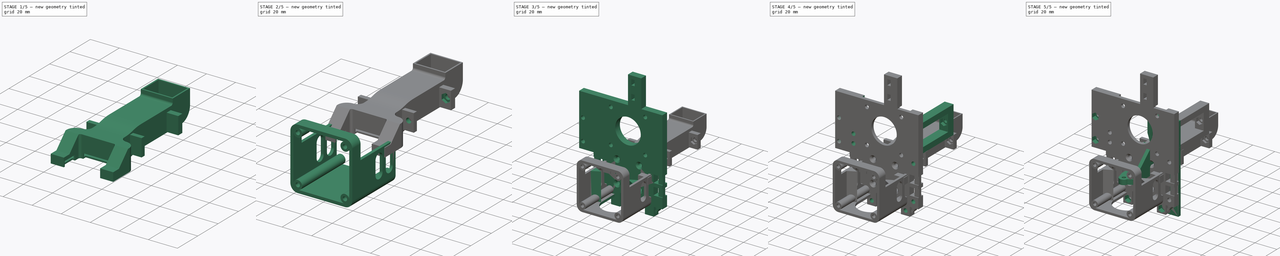
[diagram: build sequence overview — one tinted view per stage of 5, left to right]
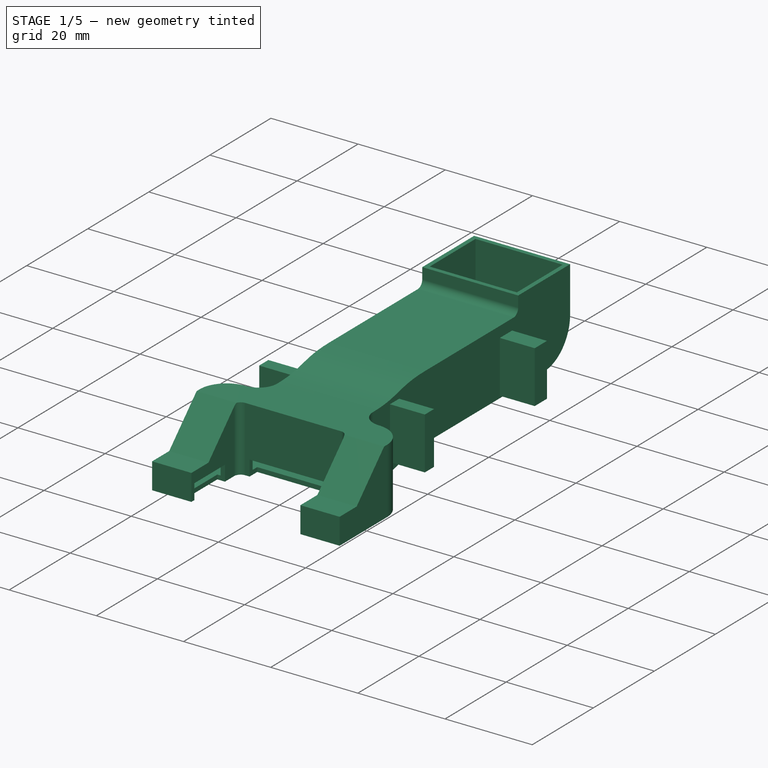
[diagram: stage 1 of 5 — iso view after this stage's code; geometry added in this stage tinted green]
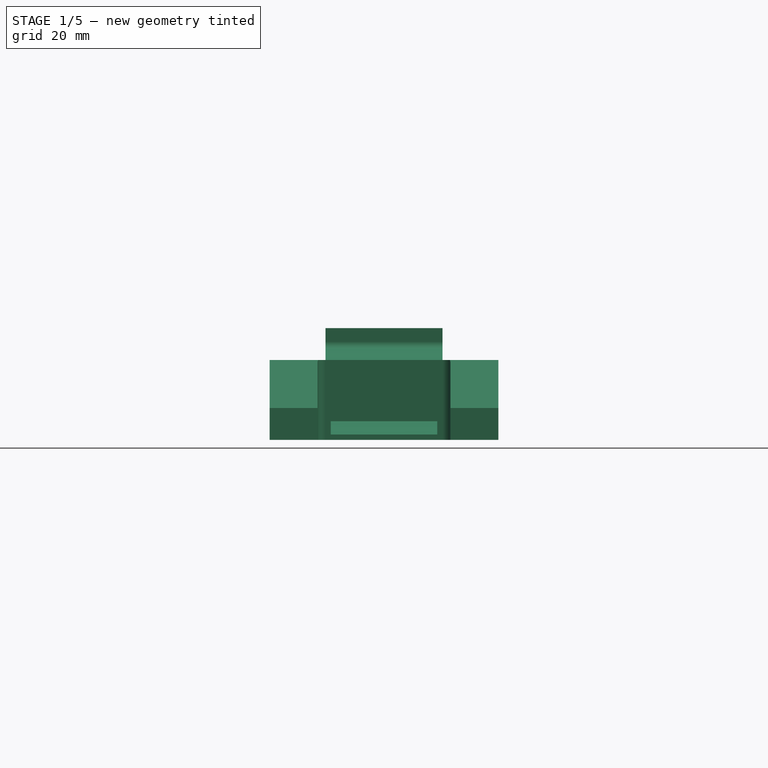
[diagram: stage 1 of 5 — front view after this stage's code; geometry added in this stage tinted green]
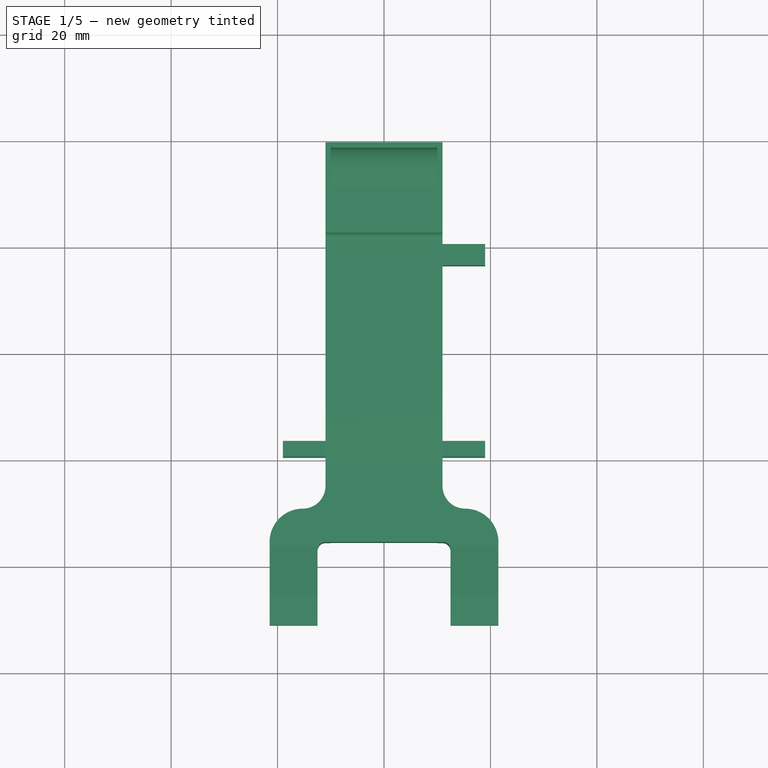
[diagram: stage 1 of 5 — top view after this stage's code; geometry added in this stage tinted green]
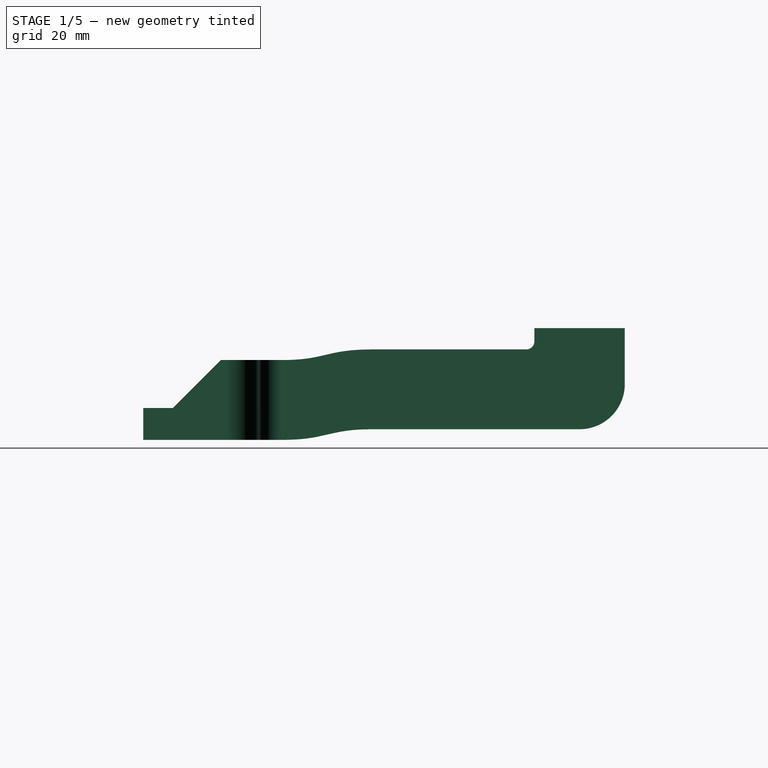
[diagram: stage 1 of 5 — right view after this stage's code; geometry added in this stage tinted green]
FCSTD DOCUMENT  (FreeCAD 0.20R28751 (Git))
Label: extruder
License: All rights reserved
LicenseURL: http://en.wikipedia.org/wiki/All_rights_reserved
objects: Sketcher::SketchObject×34, PartDesign::Pocket×19, PartDesign::Pad×15, Part::Feature×12, PartDesign::Plane×11, PartDesign::Body×5, PartDesign::ShapeBinder×3, App::Part×3, PartDesign::SubShapeBinder×1, PartDesign::Thickness×1, PartDesign::Chamfer×1, PartDesign::Mirrored×1
note: 139 computed .brp shape members not serialized (recipe doc carries the construction recipe); baked Part::Feature solids carry a one-line shape summary decoded from their .brp

FEATURE [Sketcher::SketchObject] Sketch019
  ExternalGeometry = -> [ShapeBinder001]
  FullyConstrained = true
  MapMode = 5
  Placement = pos=(0,0,0) rot=(1,0,0;1.5708rad)
  Support = -> [XZ_Plane002]
  sketch-geometry (6):
    g0: LineSegment StartX=22.5 StartY=48 StartZ=0 EndX=30.5 EndY=48 EndZ=0
    g1: LineSegment StartX=30.5 StartY=48 StartZ=0 EndX=30.5 EndY=23 EndZ=0
    g2: LineSegment StartX=30.5 StartY=23 StartZ=0 EndX=22.5 EndY=23 EndZ=0
    g3: LineSegment StartX=22.5 StartY=23 StartZ=0 EndX=22.5 EndY=48 EndZ=0
    g4: LineSegment StartX=-2e-15 StartY=35.5 StartZ=0 EndX=22.5 EndY=48 EndZ=0
    g5: LineSegment StartX=-2e-15 StartY=35.5 StartZ=0 EndX=22.5 EndY=23 EndZ=0
  constraints (16):
    c: Coincident(g0,g1)
    c: Coincident(g1,g2)
    c: Coincident(g2,g3)
    c: Coincident(g3,g0)
    c: Horizontal(g0)
    c: Horizontal(g2)
    c: Vertical(g1)
    c: Vertical(g3)
    c: DistanceX(g0,g0) = 8
    c: Coincident(g4,g-3)
    c: Coincident(g4,g0)
    c: Coincident(g5,g4)
    c: Coincident(g5,g2)
    c: Equal(g5,g4)
    c: DistanceY(g3,g3) = 25
    c: DistanceX(g-1,g0) = 22.5
FEATURE [Sketcher::SketchObject] Sketch020
  FullyConstrained = true
  MapMode = 5
  Support = -> [XY_Plane010]
  sketch-geometry (16):
    g0: LineSegment StartX=-13.5 StartY=0 StartZ=0 EndX=-13.5 EndY=-10 EndZ=0
    g1: LineSegment StartX=13.5 StartY=0 StartZ=0 EndX=13.5 EndY=-10 EndZ=0
    g2: LineSegment StartX=-13.5 StartY=-10 StartZ=0 EndX=-20.5 EndY=-10 EndZ=0
    g3: LineSegment StartX=13.5 StartY=-10 StartZ=0 EndX=20.5 EndY=-10 EndZ=0
    g4: LineSegment StartX=-11 StartY=5.5 StartZ=0 EndX=11 EndY=5.5 EndZ=0
    g5: LineSegment StartX=20.5 StartY=-10 StartZ=0 EndX=20.5 EndY=4.5 EndZ=0
    g6: ArcOfCircle CenterX=15.25 CenterY=4.5 CenterZ=0 NormalX=0 NormalY=0 NormalZ=1 AngleXU=0 Radius=5.25 StartAngle=0 EndAngle=1.5708
    g7: ArcOfCircle CenterX=15.25 CenterY=15 CenterZ=0 NormalX=0 NormalY=0 NormalZ=1 AngleXU=0 Radius=5.25 StartAngle=3.14159 EndAngle=4.71239
    g8: LineSegment StartX=-10 StartY=15 StartZ=0 EndX=10 EndY=15 EndZ=0
    g9: LineSegment StartX=-20.5 StartY=-10 StartZ=0 EndX=-20.5 EndY=4.5 EndZ=0
    g10: ArcOfCircle CenterX=-15.25 CenterY=4.5 CenterZ=0 NormalX=0 NormalY=0 NormalZ=1 AngleXU=0 Radius=5.25 StartAngle=1.5708 EndAngle=3.14159
    g11: ArcOfCircle CenterX=-15.25 CenterY=15 CenterZ=0 NormalX=0 NormalY=0 NormalZ=1 AngleXU=0 Radius=5.25 StartAngle=4.71239 EndAngle=6.28319
    g12: LineSegment StartX=-13.5 StartY=0 StartZ=0 EndX=-13.5 EndY=3 EndZ=0
    g13: ArcOfCircle CenterX=-11 CenterY=3 CenterZ=0 NormalX=0 NormalY=0 NormalZ=1 AngleXU=0 Radius=2.5 StartAngle=1.5708 EndAngle=3.14159
    g14: LineSegment StartX=13.5 StartY=0 StartZ=0 EndX=13.5 EndY=3 EndZ=0
    g15: ArcOfCircle CenterX=11 CenterY=3 CenterZ=0 NormalX=0 NormalY=0 NormalZ=1 AngleXU=0 Radius=2.5 StartAngle=-5.51e-14 EndAngle=1.5708
  constraints (45):
    c: PointOnObject(g1,g-1)
    c: PointOnObject(g0,g-1)
    c: Vertical(g0)
    c: Vertical(g1)
    c: Equal(g0,g1)
    c: DistanceY(g0,g0) = 10
    c: Coincident(g2,g0)
    c: Horizontal(g2)
    c: Coincident(g3,g1)
    c: Horizontal(g3)
    c: Equal(g2,g3)
    c: DistanceX(g3,g3) = 7
    c: DistanceX(g4,g4) = 22
    c: Coincident(g5,g3)
    c: Vertical(g5)
    c: Coincident(g6,g5)
    c: Horizontal(g6,g5)
    c: Vertical(g6,g6)
    c: Tangent(g7,g6) = 1.5708
    c: Symmetric(g8,g8,g-2)
    c: DistanceX(g8,g8) = 20
    c: Equal(g6,g7)
    c: Coincident(g9,g2)
    c: Vertical(g9)
    c: Equal(g9,g5)
    c: Tangent(g11,g10) = 1.5708
    c: Tangent(g10,g9) = 1.5708
    c: Equal(g10,g11)
    c: Equal(g11,g6)
    c: DistanceY(g-1,g7) = 15
    c: Coincident(g11,g8)
    c: Coincident(g8,g7)
    c: Perpendicular(g7,g8)
    c: Coincident(g12,g0)
    c: Vertical(g12)
    c: DistanceY(g12,g12) = 3
    c: Tangent(g13,g12) = 1.5708
    c: Tangent(g13,g4) = 1.5708
    c: Diameter(g13) = 5
    c: Coincident(g14,g1)
    c: Vertical(g14)
    c: Equal(g12,g14)
    c: Tangent(g15,g14) = -1.5708
    c: Tangent(g15,g4) = 1.5708
    c: Symmetric(g4,g4,g-2)
FEATURE [PartDesign::Pad] Pad008
  Direction = (0,0,1)
  Length = 13
  Length2 = 10
  Profile = -> Sketch020
  ReferenceAxis = -> Sketch020 [N_Axis]
  Refine = true
  Type = 0
FEATURE [Sketcher::SketchObject] Sketch021
  FullyConstrained = true
  MapMode = 5
  Placement = pos=(0,0,0) rot=(0.57735,0.57735,0.57735;2.0944rad)
  Support = -> [YZ_Plane010]
  sketch-geometry (4):
    g0: LineSegment StartX=-10 StartY=4 StartZ=0 EndX=-5 EndY=4 EndZ=0
    g1: LineSegment StartX=-10 StartY=19 StartZ=0 EndX=10 EndY=19 EndZ=0
    g2: LineSegment StartX=-10 StartY=4 StartZ=0 EndX=-10 EndY=19 EndZ=0
    g3: LineSegment StartX=-5 StartY=4 StartZ=0 EndX=10 EndY=19 EndZ=0
  constraints (12):
    c: Horizontal(g0)
    c: DistanceY(g-1,g0) = 4
    c: Horizontal(g1)
    c: DistanceX(g0,g0) = 5
    c: Coincident(g2,g0)
    c: Coincident(g2,g1)
    c: Vertical(g2)
    c: Coincident(g3,g0)
    c: Coincident(g3,g1)
    c: Angle(g3,g0) = 2.35619
    c: DistanceY(g2,g2) = 15
    c: DistanceX(g0,g-1) = 5
FEATURE [PartDesign::Pocket] Pocket012
  BaseFeature = -> Pad008
  Direction = (-1,2e-16,-3e-16)
  Length = 5
  Length2 = 5
  Midplane = true
  Profile = -> Sketch021
  ReferenceAxis = -> Sketch021 [N_Axis]
  Refine = true
  Type = 1
FEATURE [Sketcher::SketchObject] Sketch037
  FullyConstrained = true
  MapMode = 5
  Support = -> [XY_Plane010]
  sketch-geometry (4):
    g0: LineSegment StartX=-10 StartY=15 StartZ=0 EndX=10 EndY=15 EndZ=0
    g1: LineSegment StartX=10 StartY=15 StartZ=0 EndX=10 EndY=78.5 EndZ=0
    g2: LineSegment StartX=10 StartY=78.5 StartZ=0 EndX=-10 EndY=78.5 EndZ=0
    g3: LineSegment StartX=-10 StartY=78.5 StartZ=0 EndX=-10 EndY=15 EndZ=0
  constraints (11):
    c: Coincident(g0,g1)
    c: Coincident(g1,g2)
    c: Coincident(g2,g3)
    c: Coincident(g3,g0)
    c: Horizontal(g2)
    c: Vertical(g1)
    c: Vertical(g3)
    c: DistanceY(g1,g1) = 63.5
    c: DistanceY(g-1,g0) = 15
    c: DistanceX(g0,g0) = 20
    c: Symmetric(g0,g0,g-2)
FEATURE [PartDesign::Pad] Pad012
  BaseFeature = -> Pocket012
  Direction = (0,0,1)
  Length = 20
  Length2 = 10
  Profile = -> Sketch037
  ReferenceAxis = -> Sketch037 [N_Axis]
  Refine = true
  Type = 0
FEATURE [Sketcher::SketchObject] Sketch038
  FullyConstrained = true
  MapMode = 5
  Placement = pos=(0,0,0) rot=(0.57735,0.57735,0.57735;2.0944rad)
  Support = -> [YZ_Plane010]
  sketch-geometry (29):
    g0: LineSegment StartX=15 StartY=0 StartZ=0 EndX=15 EndY=13 EndZ=0
    g1: LineSegment StartX=32 StartY=15 StartZ=0 EndX=32 EndY=2 EndZ=0
    g2-g5: Circle x4 (B-spline internal-alignment scaffolding for g6; pole/knot coordinates omitted)
    g6: BSplineCurve PolesCount=4 KnotsCount=2 Degree=3 IsPeriodic=0
    g7: GeomPoint X=15 Y=13 Z=0
    g8: GeomPoint X=32 Y=15 Z=0
    g9-g12: Circle x4 (B-spline internal-alignment scaffolding for g13; pole/knot coordinates omitted)
    g13: BSplineCurve PolesCount=4 KnotsCount=2 Degree=3 IsPeriodic=0
    g14: GeomPoint X=15 Y=0 Z=0
    g15: GeomPoint X=32 Y=2 Z=0
    g16: LineSegment StartX=23.5 StartY=15 StartZ=0 EndX=32 EndY=15 EndZ=0
    g17: LineSegment StartX=23.5 StartY=15 StartZ=0 EndX=15 EndY=15 EndZ=0
    g18: LineSegment StartX=15 StartY=13 StartZ=0 EndX=15 EndY=33 EndZ=0
    g19: LineSegment StartX=15 StartY=33 StartZ=0 EndX=63.5 EndY=33 EndZ=0
    g20: LineSegment StartX=32 StartY=15 StartZ=0 EndX=61 EndY=15 EndZ=0
    g21: LineSegment StartX=63.5 StartY=17.5 StartZ=0 EndX=63.5 EndY=33 EndZ=0
    g22: LineSegment StartX=98.5 StartY=0 StartZ=0 EndX=98.5 EndY=33 EndZ=0
    g23: ArcOfCircle CenterX=71 CenterY=9.5 CenterZ=0 NormalX=0 NormalY=0 NormalZ=1 AngleXU=0 Radius=7.5 StartAngle=4.71239 EndAngle=6.28319
    g24: LineSegment StartX=32 StartY=2 StartZ=0 EndX=71 EndY=2 EndZ=0
    g25: LineSegment StartX=78.5 StartY=9.5 StartZ=0 EndX=78.5 EndY=33 EndZ=0
    g26: LineSegment StartX=78.5 StartY=33 StartZ=0 EndX=98.5 EndY=33 EndZ=0
    g27: ArcOfCircle CenterX=61 CenterY=17.5 CenterZ=0 NormalX=0 NormalY=0 NormalZ=1 AngleXU=0 Radius=2.5 StartAngle=4.71239 EndAngle=6.28319
    g28: LineSegment StartX=15 StartY=0 StartZ=0 EndX=98.5 EndY=0 EndZ=0
  constraints (68):
    c: Vertical(g0)
    c: DistanceX(g0) = 15
    c: DistanceY(g0,g0) = 13
    c: PointOnObject(g0,g-1)
    c: Vertical(g1)
    c: Equal(g0,g1)
    c: Coincident(g6,g0)
    c: Weight(g2) = 1
    c: Equal(g2,g3)
    c: Equal(g2,g4)
    c: Equal(g2,g5)
    c: Coincident(g6,g1)
    c: InternalAlignment(g2-g5 -> g6) x4
    c: InternalAlignment(g7,g6)
    c: InternalAlignment(g8,g6)
    c: Horizontal(g3,g6)
    c: Horizontal(g4,g6)
    c: Vertical(g3,g4)
    c: Weight(g9) = 1
    c: Equal(g9,g10)
    c: PointOnObject(g10,g-1)
    c: Equal(g9,g11)
    c: Equal(g9,g12)
    c: InternalAlignment(g9-g12 -> g13) x4
    c: InternalAlignment(g14,g13)
    c: InternalAlignment(g15,g13)
    c: Horizontal(g11,g13)
    c: Vertical(g10,g11)
    c: Vertical(g11,g3)
    c: DistanceX(g13) = 32
    c: Coincident(g16,g4)
    c: Coincident(g16,g6)
    c: Coincident(g13,g1)
    c: Coincident(g17,g4)
    c: Horizontal(g17)
    c: Equal(g17,g16)
    c: Vertical(g6,g17)
    c: Coincident(g13,g0)
    c: Coincident(g18,g6)
    c: Vertical(g18)
    c: DistanceY(g18,g18) = 20
    c: Coincident(g19,g18)
    c: Horizontal(g19)
    c: Coincident(g20,g6)
    c: Horizontal(g20)
    c: Vertical(g21)
    c: PointOnObject(g22,g-1)
    c: DistanceY(g13) = 2
    c: Vertical(g22)
    c: Coincident(g24,g13)
    c: Horizontal(g24)
    c: Tangent(g24,g23) = -1.5708
    c: Vertical(g25)
    c: Coincident(g26,g25)
    c: Horizontal(g26)
    c: Coincident(g22,g26)
    c: Tangent(g23,g25) = -1.5708
    c: Horizontal(g19,g25)
    c: DistanceX(g25) = 78.5
    c: Coincident(g19,g21)
    c: DistanceX(g19,g25) = 15
    c: Tangent(g27,g21) = -1.5708
    c: Coincident(g28,g13)
    c: Coincident(g28,g22)
    c: DistanceX(g26,g26) = 20
    c: Diameter(g23) = 15
    c: Diameter(g27) = 5
    c: Tangent(g20,g27) = -1.5708
FEATURE [PartDesign::Pocket] Pocket020
  BaseFeature = -> Pad012
  Direction = (-1,2e-16,-3e-16)
  Length = 5
  Length2 = 5
  Midplane = true
  Profile = -> Sketch038
  ReferenceAxis = -> Sketch038 [N_Axis]
  Refine = true
  Type = 1
FEATURE [PartDesign::Thickness] Thickness
  Base = -> Pocket020 [Face27]
  BaseFeature = -> Pocket020
  Intersection = false
  Join = 1
  Mode = 0
  Refine = true
  SupportTransform = false
  Value = 1
FEATURE [PartDesign::Body] Body  label="V6 fan duct"
  Group = -> [Sketch006,Pad003,DatumPlane001,Sketch008,Pocket004,DatumPlane002,Sketch009,Pocket005,Sketch010,Pocket006,Sketch012,Pocket008,Sketch013,Pad004,Sketch015,Pocket,Sketch040,Pad015]
  Origin = -> Origin007
  Placement = pos=(4,-6,7) rot=(0,0,1;0rad)
  Tip = -> Pad015
FEATURE [PartDesign::Plane] DatumPlane012
  AttachmentOffset = pos=(0,0,2.5) rot=(0,0,1;0rad)
  Length = 64.4568
  MapMode = 5
  Placement = pos=(0,0,2.5) rot=(0,0,1;0rad)
  ResizeMode = 0
  Support = -> [XY_Plane010]
  Width = 118.957
FEATURE [Sketcher::SketchObject] Sketch028
  FullyConstrained = true
  MapMode = 5
  Placement = pos=(0,0,2.5) rot=(0,0,1;0rad)
  Support = -> [DatumPlane012]
  sketch-geometry (8):
    g0: LineSegment StartX=-10 StartY=7 StartZ=0 EndX=10 EndY=7 EndZ=0
    g1: LineSegment StartX=10 StartY=7 StartZ=0 EndX=10 EndY=0 EndZ=0
    g2: LineSegment StartX=10 StartY=0 StartZ=0 EndX=-10 EndY=0 EndZ=0
    g3: LineSegment StartX=-10 StartY=0 StartZ=0 EndX=-10 EndY=7 EndZ=0
    g4: LineSegment StartX=-14.25 StartY=0 StartZ=0 EndX=14.25 EndY=0 EndZ=0
    g5: LineSegment StartX=14.25 StartY=0 StartZ=0 EndX=14.25 EndY=-10 EndZ=0
    g6: LineSegment StartX=14.25 StartY=-10 StartZ=0 EndX=-14.25 EndY=-10 EndZ=0
    g7: LineSegment StartX=-14.25 StartY=-10 StartZ=0 EndX=-14.25 EndY=0 EndZ=0
  constraints (22):
    c: Coincident(g0,g1)
    c: Coincident(g1,g2)
    c: Coincident(g2,g3)
    c: Coincident(g3,g0)
    c: Horizontal(g2)
    c: Vertical(g1)
    c: Vertical(g3)
    c: PointOnObject(g1,g-1)
    c: Symmetric(g0,g0,g-2)
    c: DistanceX(g0,g0) = 20
    c: DistanceY(g1,g1) = 7
    c: Coincident(g4,g5)
    c: Coincident(g5,g6)
    c: Coincident(g6,g7)
    c: Coincident(g7,g4)
    c: Horizontal(g4)
    c: Vertical(g5)
    c: Vertical(g7)
    c: Symmetric(g6,g5,g-2)
    c: DistanceY(g5,g5) = 10
    c: DistanceX(g6,g6) = 28.5
    c: PointOnObject(g4,g-1)
FEATURE [PartDesign::Pocket] Pocket021
  BaseFeature = -> Thickness
  Direction = (0,0,-1)
  Length = 5
  Length2 = 5
  Profile = -> Sketch028
  ReferenceAxis = -> Sketch028 [N_Axis]
  Refine = true
  Type = 0
FEATURE [PartDesign::Pad] Pad013
  BaseFeature = -> Pocket021
  Direction = (0,0,1)
  Length = 12
  Length2 = 10
  Profile = -> Sketch029
  ReferenceAxis = -> Sketch029 [N_Axis]
  Refine = true
  Type = 0
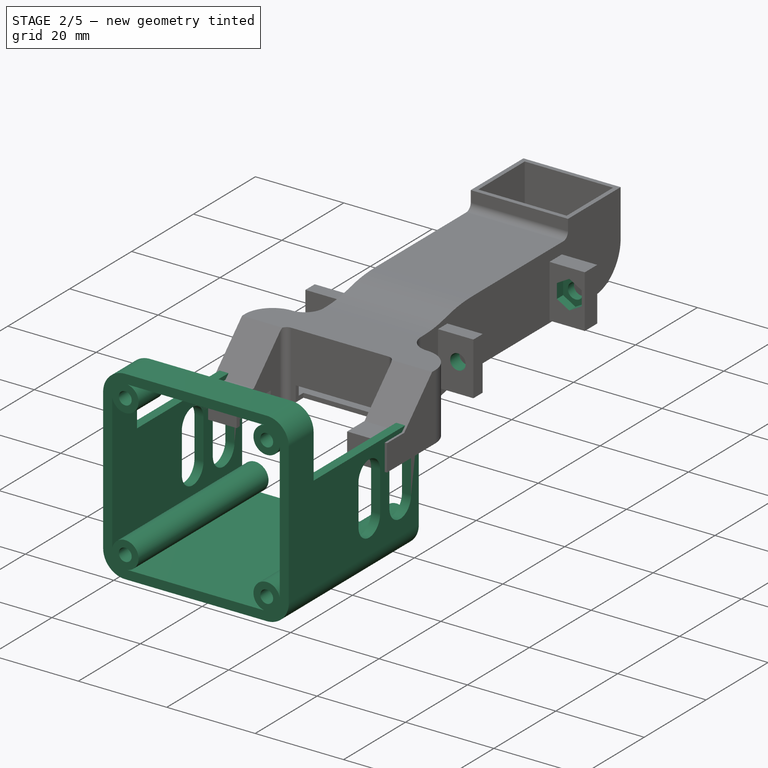
[diagram: stage 2 of 5 — iso view after this stage's code; geometry added in this stage tinted green]
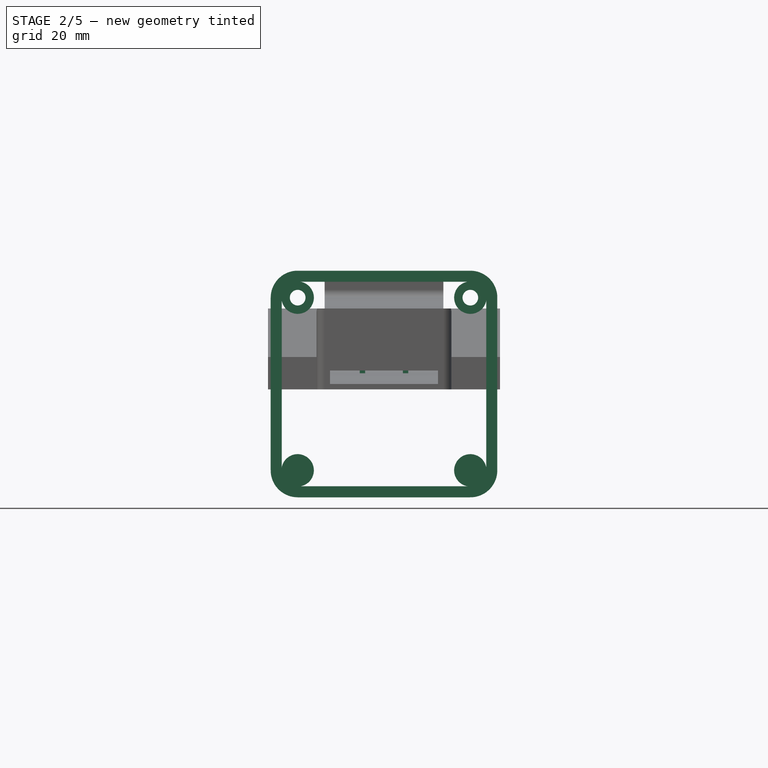
[diagram: stage 2 of 5 — front view after this stage's code; geometry added in this stage tinted green]
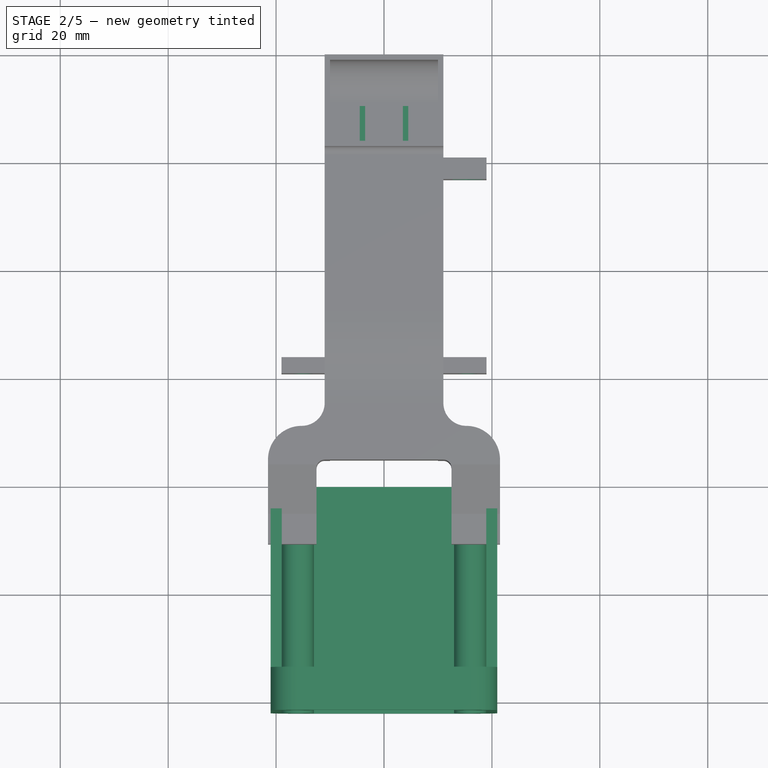
[diagram: stage 2 of 5 — top view after this stage's code; geometry added in this stage tinted green]
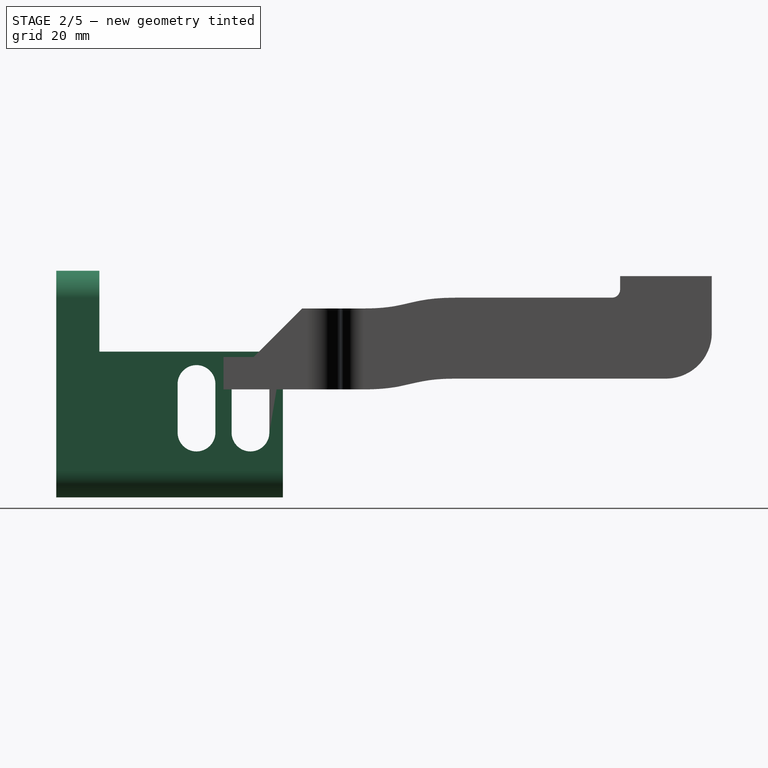
[diagram: stage 2 of 5 — right view after this stage's code; geometry added in this stage tinted green]
FEATURE [Sketcher::SketchObject] Sketch004
  ExternalGeometry = -> [ShapeBinder002]
  FullyConstrained = true
  MapMode = 5
  Placement = pos=(0,0,0) rot=(1,0,0;1.5708rad)
  Support = -> [XZ_Plane002]
  sketch-geometry (4):
    g0: Circle CenterX=-40.5725 CenterY=16.3875 CenterZ=0 NormalX=0 NormalY=0 NormalZ=1 AngleXU=0 Radius=3
    g1: Circle CenterX=-40.5725 CenterY=35.5625 CenterZ=0 NormalX=0 NormalY=0 NormalZ=1 AngleXU=0 Radius=3
    g2: Circle CenterX=-40.5725 CenterY=35.5625 CenterZ=0 NormalX=0 NormalY=0 NormalZ=1 AngleXU=0 Radius=1.75
    g3: Circle CenterX=-40.5725 CenterY=16.3875 CenterZ=0 NormalX=0 NormalY=0 NormalZ=1 AngleXU=0 Radius=1.75
  constraints (8):
    c: Coincident(g0,g-4)
    c: Diameter(g0) = 6
    c: Coincident(g-3,g1)
    c: Equal(g1,g0)
    c: Coincident(g2,g1)
    c: Diameter(g2) = 3.5
    c: Coincident(g3,g0)
    c: Equal(g3,g2)
FEATURE [Sketcher::SketchObject] Sketch005
  ExternalGeometry = -> [ShapeBinder001]
  FullyConstrained = true
  MapMode = 5
  Placement = pos=(0,0,0) rot=(1,0,0;1.5708rad)
  Support = -> [XZ_Plane002]
  sketch-geometry (8):
    g0: LineSegment StartX=-21.65 StartY=57.15 StartZ=0 EndX=21.65 EndY=57.15 EndZ=0
    g1: LineSegment StartX=21.65 StartY=57.15 StartZ=0 EndX=21.65 EndY=13.85 EndZ=0
    g2: LineSegment StartX=21.65 StartY=13.85 StartZ=0 EndX=-21.65 EndY=13.85 EndZ=0
    g3: LineSegment StartX=-21.65 StartY=13.85 StartZ=0 EndX=-21.65 EndY=57.15 EndZ=0
    g4: LineSegment StartX=-20.65 StartY=52.9074 StartZ=0 EndX=-21.65 EndY=52.9074 EndZ=0
    g5: LineSegment StartX=20.65 StartY=52.9074 StartZ=0 EndX=21.65 EndY=52.9074 EndZ=0
    g6: LineSegment StartX=-17.4074 StartY=14.85 StartZ=0 EndX=-17.4074 EndY=13.85 EndZ=0
    g7: LineSegment StartX=17.4074 StartY=56.15 StartZ=0 EndX=17.4074 EndY=57.15 EndZ=0
  constraints (24):
    c: Coincident(g0,g1)
    c: Coincident(g1,g2)
    c: Coincident(g2,g3)
    c: Coincident(g3,g0)
    c: Horizontal(g0)
    c: Horizontal(g2)
    c: Vertical(g1)
    c: Vertical(g3)
    c: Coincident(g4,g-5)
    c: PointOnObject(g4,g3)
    c: Horizontal(g4)
    c: DistanceX(g4,g4) = 1
    c: Coincident(g5,g-4)
    c: PointOnObject(g5,g1)
    c: Horizontal(g5)
    c: Equal(g5,g4)
    c: Coincident(g6,g-3)
    c: PointOnObject(g6,g2)
    c: Vertical(g6)
    c: Equal(g6,g4)
    c: Coincident(g7,g-6)
    c: PointOnObject(g7,g0)
    c: Vertical(g7)
    c: Equal(g4,g7)
FEATURE [Sketcher::SketchObject] Sketch006
  FullyConstrained = true
  MapMode = 5
  Placement = pos=(0,0,0) rot=(1,0,0;1.5708rad)
  Support = -> [XZ_Plane007]
  sketch-geometry (12):
    g0: LineSegment StartX=-16 StartY=21 StartZ=0 EndX=16 EndY=21 EndZ=0
    g1: LineSegment StartX=21 StartY=16 StartZ=0 EndX=21 EndY=-16 EndZ=0
    g2: LineSegment StartX=16 StartY=-21 StartZ=0 EndX=-16 EndY=-21 EndZ=0
    g3: LineSegment StartX=-21 StartY=-16 StartZ=0 EndX=-21 EndY=16 EndZ=0
    g4: ArcOfCircle CenterX=-16 CenterY=16 CenterZ=0 NormalX=0 NormalY=0 NormalZ=1 AngleXU=0 Radius=5 StartAngle=1.5708 EndAngle=3.14159
    g5: GeomPoint X=-21 Y=21 Z=0
    g6: ArcOfCircle CenterX=-16 CenterY=-16 CenterZ=0 NormalX=0 NormalY=0 NormalZ=1 AngleXU=0 Radius=5 StartAngle=3.14159 EndAngle=4.71239
    g7: GeomPoint X=-21 Y=-21 Z=0
    g8: ArcOfCircle CenterX=16 CenterY=16 CenterZ=0 NormalX=0 NormalY=0 NormalZ=1 AngleXU=0 Radius=5 StartAngle=0 EndAngle=1.5708
    g9: GeomPoint X=21 Y=21 Z=0
    g10: ArcOfCircle CenterX=16 CenterY=-16 CenterZ=0 NormalX=0 NormalY=0 NormalZ=1 AngleXU=0 Radius=5 StartAngle=4.71239 EndAngle=6.28319
    g11: GeomPoint X=21 Y=-21 Z=0
  constraints (26):
    c: Horizontal(g2)
    c: Vertical(g1)
    c: DistanceY(g7,g5) = 42
    c: DistanceX(g7,g11) = 42
    c: Symmetric(g5,g9,g-2)
    c: Symmetric(g7,g5,g-1)
    c: PointOnObject(g5,g3)
    c: PointOnObject(g5,g0)
    c: Tangent(g3,g4) = 1.5708
    c: Tangent(g0,g4) = 1.5708
    c: Diameter(g4) = 10
    c: PointOnObject(g7,g2)
    c: PointOnObject(g7,g3)
    c: Tangent(g2,g6) = 1.5708
    c: Tangent(g3,g6) = 1.5708
    c: Equal(g6,g4)
    c: PointOnObject(g9,g0)
    c: PointOnObject(g9,g1)
    c: Tangent(g0,g8) = 1.5708
    c: Tangent(g1,g8) = 1.5708
    c: Equal(g8,g4)
    c: PointOnObject(g11,g2)
    c: PointOnObject(g11,g1)
    c: Tangent(g2,g10) = 1.5708
    c: Tangent(g1,g10) = 1.5708
    c: Equal(g10,g8)
FEATURE [PartDesign::Pad] Pad003
  Direction = (0,-1,-2e-16)
  Length = 42
  Length2 = 10
  Placement = pos=(0,0,0) rot=(1,0,0;1.5708rad)
  Profile = -> Sketch006
  ReferenceAxis = -> Sketch006 [N_Axis]
  Refine = true
  Type = 0
FEATURE [PartDesign::Plane] DatumPlane001
  AttachmentOffset = pos=(0,0,6) rot=(0,0,1;0rad)
  Length = 63.7785
  MapMode = 2
  Placement = pos=(0,0,6) rot=(0,0,1;0rad)
  ResizeMode = 0
  Support = -> [XY_Plane007]
  Width = 78.8024
FEATURE [Sketcher::SketchObject] Sketch008
  FullyConstrained = true
  MapMode = 5
  Placement = pos=(0,0,6) rot=(0,0,1;0rad)
  Support = -> [DatumPlane001]
  sketch-geometry (4):
    g0: LineSegment StartX=-30 StartY=0 StartZ=0 EndX=30 EndY=0 EndZ=0
    g1: LineSegment StartX=30 StartY=0 StartZ=0 EndX=30 EndY=-34 EndZ=0
    g2: LineSegment StartX=30 StartY=-34 StartZ=0 EndX=-30 EndY=-34 EndZ=0
    g3: LineSegment StartX=-30 StartY=-34 StartZ=0 EndX=-30 EndY=0 EndZ=0
  constraints (11):
    c: Coincident(g0,g1)
    c: Coincident(g1,g2)
    c: Coincident(g2,g3)
    c: Coincident(g3,g0)
    c: Horizontal(g0)
    c: Vertical(g1)
    c: Vertical(g3)
    c: Symmetric(g2,g1,g-2)
    c: PointOnObject(g0,g-1)
    c: DistanceX(g2,g2) = 60
    c: DistanceY(g1,g1) = 34
FEATURE [PartDesign::Pocket] Pocket004
  BaseFeature = -> Pad003
  Direction = (0,0,-1)
  Length = 5
  Length2 = 5
  Placement = pos=(0,0,0) rot=(1,0,0;1.5708rad)
  Profile = -> Sketch008
  ReferenceAxis = -> Sketch008 [N_Axis]
  Refine = true
  Reversed = true
  Type = 1
FEATURE [PartDesign::Plane] DatumPlane002
  AttachmentOffset = pos=(0,0,42) rot=(0,0,1;0rad)
  Length = 62.2214
  MapMode = 5
  Placement = pos=(0,-42,-9.3e-15) rot=(1,0,0;1.5708rad)
  ResizeMode = 0
  Support = -> [XZ_Plane007]
  Width = 60.7334
FEATURE [Sketcher::SketchObject] Sketch009
  FullyConstrained = true
  MapMode = 5
  Placement = pos=(0,-42,-9.3e-15) rot=(1,0,0;1.5708rad)
  Support = -> [DatumPlane002]
  sketch-geometry (6):
    g0: Circle CenterX=-16 CenterY=16 CenterZ=0 NormalX=0 NormalY=0 NormalZ=1 AngleXU=0 Radius=1.45
    g1: Circle CenterX=16 CenterY=16 CenterZ=0 NormalX=0 NormalY=0 NormalZ=1 AngleXU=0 Radius=1.45
    g2: Circle CenterX=-16 CenterY=-16 CenterZ=0 NormalX=0 NormalY=0 NormalZ=1 AngleXU=0 Radius=1.45
    g3: Circle CenterX=16 CenterY=-16 CenterZ=0 NormalX=0 NormalY=0 NormalZ=1 AngleXU=0 Radius=1.45
    g4: LineSegment StartX=-16 StartY=16 StartZ=0 EndX=16 EndY=16 EndZ=0
    g5: LineSegment StartX=-16 StartY=-16 StartZ=0 EndX=-16 EndY=16 EndZ=0
  constraints (14):
    c: Diameter(g0) = 2.9
    c: Equal(g0,g1)
    c: Symmetric(g0,g1,g-2)
    c: DistanceX(g0,g1) = 32
    c: Equal(g2,g0)
    c: Equal(g3,g0)
    c: Symmetric(g2,g0,g-1)
    c: Coincident(g4,g0)
    c: Coincident(g4,g1)
    c: Coincident(g5,g2)
    c: Coincident(g5,g0)
    c: Equal(g5,g4)
    c: Horizontal(g3,g2)
    c: Vertical(g3,g1)
FEATURE [PartDesign::Pocket] Pocket005
  BaseFeature = -> Pocket004
  Direction = (0,1,2e-16)
  Length = 8
  Length2 = 5
  Placement = pos=(0,0,0) rot=(1,0,0;1.5708rad)
  Profile = -> Sketch009
  ReferenceAxis = -> Sketch009 [N_Axis]
  Refine = true
  Type = 0
FEATURE [Sketcher::SketchObject] Sketch010
  FullyConstrained = true
  MapMode = 5
  Placement = pos=(0,-42,-9.3e-15) rot=(1,0,0;1.5708rad)
  Support = -> [DatumPlane002]
  sketch-geometry (12):
    g0: LineSegment StartX=-18.958 StartY=15.5 StartZ=0 EndX=-18.958 EndY=-15.5 EndZ=0
    g1: LineSegment StartX=-16 StartY=16 StartZ=0 EndX=16 EndY=16 EndZ=0
    g2: LineSegment StartX=16 StartY=16 StartZ=0 EndX=16 EndY=-16 EndZ=0
    g3: LineSegment StartX=16 StartY=-16 StartZ=0 EndX=-16 EndY=-16 EndZ=0
    g4: LineSegment StartX=-16 StartY=-16 StartZ=0 EndX=-16 EndY=16 EndZ=0
    g5: ArcOfCircle CenterX=-16 CenterY=16 CenterZ=0 NormalX=0 NormalY=0 NormalZ=1 AngleXU=0 Radius=3 StartAngle=3.30904 EndAngle=7.68653
    g6: LineSegment StartX=-15.5 StartY=18.958 StartZ=0 EndX=15.5 EndY=18.958 EndZ=0
    g7: ArcOfCircle CenterX=16 CenterY=16 CenterZ=0 NormalX=0 NormalY=0 NormalZ=1 AngleXU=0 Radius=3 StartAngle=1.73824 EndAngle=6.11574
    g8: LineSegment StartX=-15.5 StartY=-18.958 StartZ=0 EndX=15.5 EndY=-18.958 EndZ=0
    g9: LineSegment StartX=18.958 StartY=-15.5 StartZ=0 EndX=18.958 EndY=15.5 EndZ=0
    g10: ArcOfCircle CenterX=-16 CenterY=-16 CenterZ=0 NormalX=0 NormalY=0 NormalZ=1 AngleXU=0 Radius=3 StartAngle=4.87984 EndAngle=9.25733
    g11: ArcOfCircle CenterX=16 CenterY=-16 CenterZ=0 NormalX=0 NormalY=0 NormalZ=1 AngleXU=0 Radius=3 StartAngle=0.167448 EndAngle=4.54494
  constraints (35):
    c: Vertical(g0)
    c: Coincident(g1,g2)
    c: Coincident(g2,g3)
    c: Coincident(g3,g4)
    c: Coincident(g4,g1)
    c: Horizontal(g1)
    c: Horizontal(g3)
    c: Vertical(g2)
    c: Vertical(g4)
    c: Symmetric(g1,g2,g-1)
    c: DistanceX(g1,g1) = 32
    c: Equal(g4,g1)
    c: Coincident(g5,g0)
    c: Coincident(g1,g5)
    c: Coincident(g6,g5)
    c: Horizontal(g6)
    c: Coincident(g7,g1)
    c: Coincident(g7,g6)
    c: Horizontal(g8)
    c: Coincident(g9,g7)
    c: Vertical(g9)
    c: Coincident(g10,g3)
    c: Coincident(g10,g0)
    c: Coincident(g10,g8)
    c: Coincident(g11,g2)
    c: Coincident(g11,g8)
    c: Coincident(g11,g9)
    c: Equal(g5,g7)
    c: Equal(g7,g10)
    c: Equal(g10,g11)
    c: Equal(g0,g8)
    c: Equal(g8,g9)
    c: Equal(g9,g6)
    c: Diameter(g7) = 6
    c: DistanceY(g9,g9) = 31
FEATURE [PartDesign::Pocket] Pocket006
  BaseFeature = -> Pocket005
  Direction = (0,1,2e-16)
  Length = 5
  Length2 = 5
  Placement = pos=(0,0,0) rot=(1,0,0;1.5708rad)
  Profile = -> Sketch010
  ReferenceAxis = -> Sketch010 [N_Axis]
  Refine = true
  Type = 1
FEATURE [Sketcher::SketchObject] Sketch011
  FullyConstrained = true
  MapMode = 5
  Placement = pos=(0,0,0) rot=(1,0,0;1.5708rad)
  Support = -> [XZ_Plane002]
  sketch-geometry (7):
    g0: Circle CenterX=26.5 CenterY=16 CenterZ=0 NormalX=0 NormalY=0 NormalZ=1 AngleXU=0 Radius=1.75
    g1: Circle CenterX=26.5 CenterY=-15 CenterZ=0 NormalX=0 NormalY=0 NormalZ=1 AngleXU=0 Radius=1.75
    g2: Circle CenterX=-18.5 CenterY=-15 CenterZ=0 NormalX=0 NormalY=0 NormalZ=1 AngleXU=0 Radius=1.75
    g3: Circle CenterX=-27.5 CenterY=26 CenterZ=0 NormalX=0 NormalY=0 NormalZ=1 AngleXU=0 Radius=1.75
    g4: Circle CenterX=-27.5 CenterY=18 CenterZ=0 NormalX=0 NormalY=0 NormalZ=1 AngleXU=0 Radius=1.75
    g5: Circle CenterX=-11 CenterY=-24 CenterZ=0 NormalX=0 NormalY=0 NormalZ=1 AngleXU=0 Radius=1.75
    g6: Circle CenterX=19.5 CenterY=-24 CenterZ=0 NormalX=0 NormalY=0 NormalZ=1 AngleXU=0 Radius=1.75
  constraints (21):
    c: Diameter(g0) = 3.5
    c: DistanceX(g0) = 26.5
    c: DistanceY(g0) = 16
    c: Equal(g1,g0)
    c: Vertical(g1,g0)
    c: DistanceY(g1,g-1) = 15
    c: Horizontal(g2,g1)
    c: Equal(g2,g0)
    c: DistanceX(g2,g-1) = 18.5
    c: Equal(g3,g0)
    c: DistanceX(g3,g-1) = 27.5
    c: DistanceY(g-1,g3) = 26
    c: Vertical(g4,g3)
    c: Equal(g4,g0)
    c: DistanceY(g4,g3) = 8
    c: Equal(g0,g5)
    c: Equal(g6,g0)
    c: Horizontal(g5,g6)
    c: DistanceY(g6,g-1) = 24
    c: DistanceX(g-1,g6) = 19.5
    c: DistanceX(g5,g-1) = 11
FEATURE [Sketcher::SketchObject] Sketch012
  FullyConstrained = true
  MapMode = 5
  Placement = pos=(0,0,0) rot=(0.57735,0.57735,0.57735;2.0944rad)
  Support = -> [YZ_Plane007]
  sketch-geometry (8):
    g0: ArcOfCircle CenterX=-6 CenterY=0 CenterZ=0 NormalX=0 NormalY=0 NormalZ=1 AngleXU=0 Radius=3.5 StartAngle=0 EndAngle=3.14159
    g1: ArcOfCircle CenterX=-6 CenterY=-9 CenterZ=0 NormalX=0 NormalY=0 NormalZ=1 AngleXU=0 Radius=3.5 StartAngle=3.14159 EndAngle=6.28319
    g2: LineSegment StartX=-9.5 StartY=4e-16 StartZ=0 EndX=-9.5 EndY=-9 EndZ=0
    g3: LineSegment StartX=-2.5 StartY=-9 StartZ=0 EndX=-2.5 EndY=0 EndZ=0
    g4: ArcOfCircle CenterX=-16 CenterY=0 CenterZ=0 NormalX=0 NormalY=0 NormalZ=1 AngleXU=0 Radius=3.5 StartAngle=0 EndAngle=3.14159
    g5: ArcOfCircle CenterX=-16 CenterY=-9 CenterZ=0 NormalX=0 NormalY=0 NormalZ=1 AngleXU=0 Radius=3.5 StartAngle=3.14159 EndAngle=6.28319
    g6: LineSegment StartX=-19.5 StartY=4e-16 StartZ=0 EndX=-19.5 EndY=-9 EndZ=0
    g7: LineSegment StartX=-12.5 StartY=-9 StartZ=0 EndX=-12.5 EndY=0 EndZ=0
  constraints (20):
    c: Tangent(g0,g2) = -1.5708
    c: Tangent(g2,g1) = -1.5708
    c: Tangent(g1,g3) = -1.5708
    c: Tangent(g3,g0) = -1.5708
    c: Equal(g0,g1)
    c: Vertical(g1,g0)
    c: DistanceY(g3,g3) = 9
    c: Diameter(g0) = 7
    c: DistanceX(g0,g-1) = 6
    c: PointOnObject(g0,g-1)
    c: Tangent(g4,g6) = -1.5708
    c: Tangent(g6,g5) = -1.5708
    c: Tangent(g5,g7) = -1.5708
    c: Tangent(g7,g4) = -1.5708
    c: Equal(g4,g5)
    c: PointOnObject(g4,g-1)
    c: Vertical(g7)
    c: Equal(g7,g2)
    c: Equal(g4,g0)
    c: DistanceX(g4,g0) = 3
FEATURE [PartDesign::Pocket] Pocket008
  BaseFeature = -> Pocket006
  Direction = (-1,2e-16,-3e-16)
  Length = 5
  Length2 = 5
  Midplane = true
  Placement = pos=(0,0,0) rot=(1,0,0;1.5708rad)
  Profile = -> Sketch012
  ReferenceAxis = -> Sketch012 [N_Axis]
  Refine = true
  Type = 1
FEATURE [PartDesign::Pocket] Pocket022
  BaseFeature = -> Pad013
  Direction = (0,-1,-2e-16)
  Length = 5
  Length2 = 5
  Profile = -> Sketch030
  ReferenceAxis = -> Sketch030 [N_Axis]
  Refine = true
  Reversed = true
  Type = 1
FEATURE [PartDesign::Pocket] Pocket023
  BaseFeature = -> Pocket022
  Direction = (0,-1,-2e-16)
  Length = 2
  Length2 = 5
  Profile = -> Sketch035
  ReferenceAxis = -> Sketch035 [N_Axis]
  Refine = true
  Reversed = true
  Type = 0
FEATURE [PartDesign::Plane] DatumPlane013
  AttachmentOffset = pos=(0,0,1) rot=(0,0,1;0rad)
  Length = 64.4568
  MapMode = 5
  Placement = pos=(0,0,1) rot=(0,0,1;0rad)
  ResizeMode = 0
  Support = -> [XY_Plane010]
  Width = 118.957
FEATURE [Sketcher::SketchObject] Sketch041
  FullyConstrained = true
  MapMode = 5
  Placement = pos=(0,0,1) rot=(0,0,1;0rad)
  Support = -> [DatumPlane013]
  sketch-geometry (8):
    g0: LineSegment StartX=-4.5 StartY=70 StartZ=0 EndX=-3.5 EndY=70 EndZ=0
    g1: LineSegment StartX=-3.5 StartY=70 StartZ=0 EndX=-3.5 EndY=32 EndZ=0
    g2: LineSegment StartX=-3.5 StartY=32 StartZ=0 EndX=-4.5 EndY=32 EndZ=0
    g3: LineSegment StartX=-4.5 StartY=32 StartZ=0 EndX=-4.5 EndY=70 EndZ=0
    g4: LineSegment StartX=3.5 StartY=70 StartZ=0 EndX=4.5 EndY=70 EndZ=0
    g5: LineSegment StartX=4.5 StartY=70 StartZ=0 EndX=4.5 EndY=32 EndZ=0
    g6: LineSegment StartX=4.5 StartY=32 StartZ=0 EndX=3.5 EndY=32 EndZ=0
    g7: LineSegment StartX=3.5 StartY=32 StartZ=0 EndX=3.5 EndY=70 EndZ=0
  constraints (23):
    c: Coincident(g0,g1)
    c: Coincident(g1,g2)
    c: Coincident(g2,g3)
    c: Coincident(g3,g0)
    c: Horizontal(g0)
    c: Horizontal(g2)
    c: Vertical(g1)
    c: Vertical(g3)
    c: Coincident(g4,g5)
    c: Coincident(g5,g6)
    c: Coincident(g6,g7)
    c: Coincident(g7,g4)
    c: Horizontal(g4)
    c: Horizontal(g6)
    c: Vertical(g5)
    c: Vertical(g7)
    c: Equal(g1,g7)
    c: Equal(g0,g4)
    c: Symmetric(g0,g4,g-2)
    c: DistanceY(g6) = 32
    c: DistanceY(g5,g5) = 38
    c: DistanceX(g4,g4) = 1
    c: DistanceX(g0,g4) = 7
FEATURE [PartDesign::Pad] Pad016
  BaseFeature = -> Pocket023
  Direction = (0,0,1)
  Length = 15
  Length2 = 10
  Profile = -> Sketch041
  ReferenceAxis = -> Sketch041 [N_Axis]
  Refine = true
  Type = 0
FEATURE [PartDesign::Body] Body003  label="Cooling fan duct"
  Group = -> [Sketch020,Pad008,Sketch021,Pocket012,DatumPlane007,Sketch028,Sketch029,DatumPlane008,Sketch030,DatumPlane011,Sketch035,Sketch037,Pad012,Sketch038,Pocket020,Thickness,Pocket021,Pad013,Pocket022,Pocket023,DatumPlane012,DatumPlane013,Sketch041,Pad016]
  Origin = -> Origin010
  Placement = pos=(4,-20.5,-32) rot=(0,0,1;0rad)
  Tip = -> Pad016
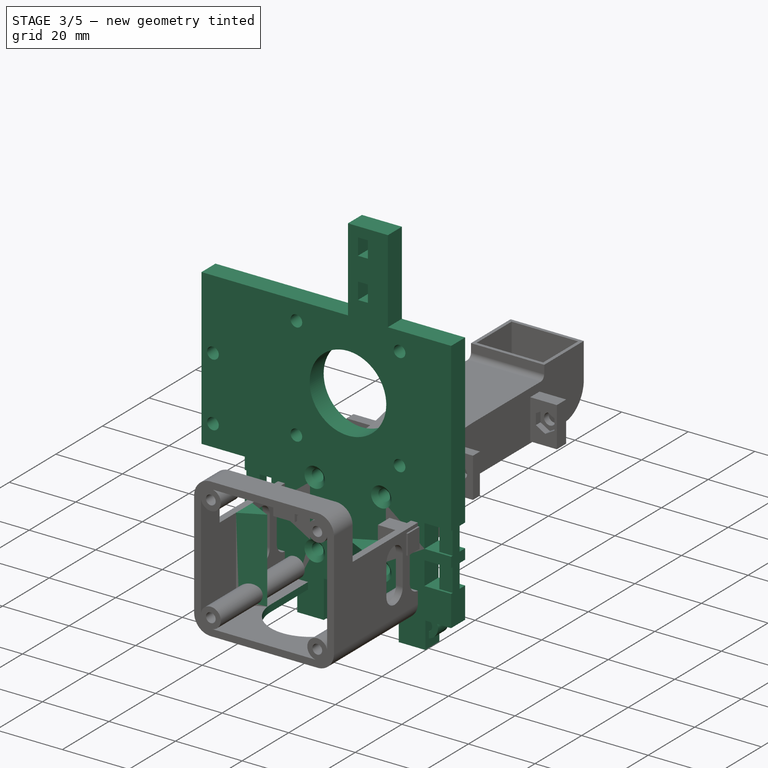
[diagram: stage 3 of 5 — iso view after this stage's code; geometry added in this stage tinted green]
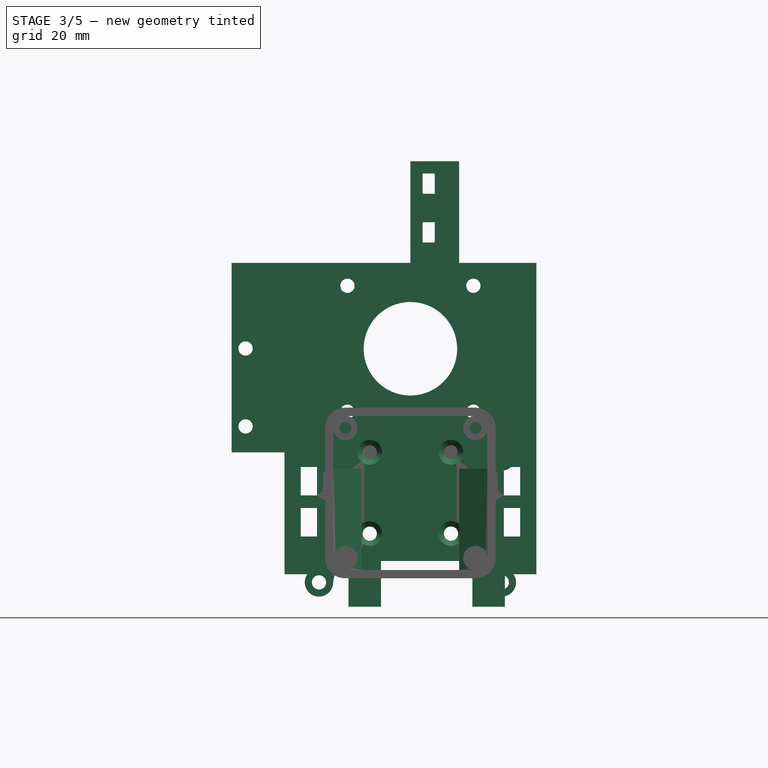
[diagram: stage 3 of 5 — front view after this stage's code; geometry added in this stage tinted green]
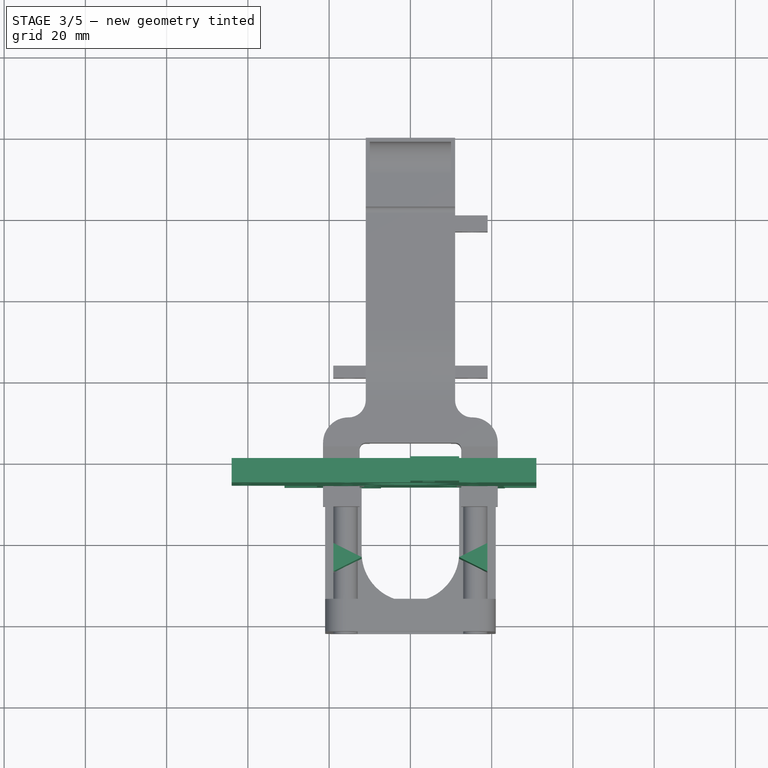
[diagram: stage 3 of 5 — top view after this stage's code; geometry added in this stage tinted green]
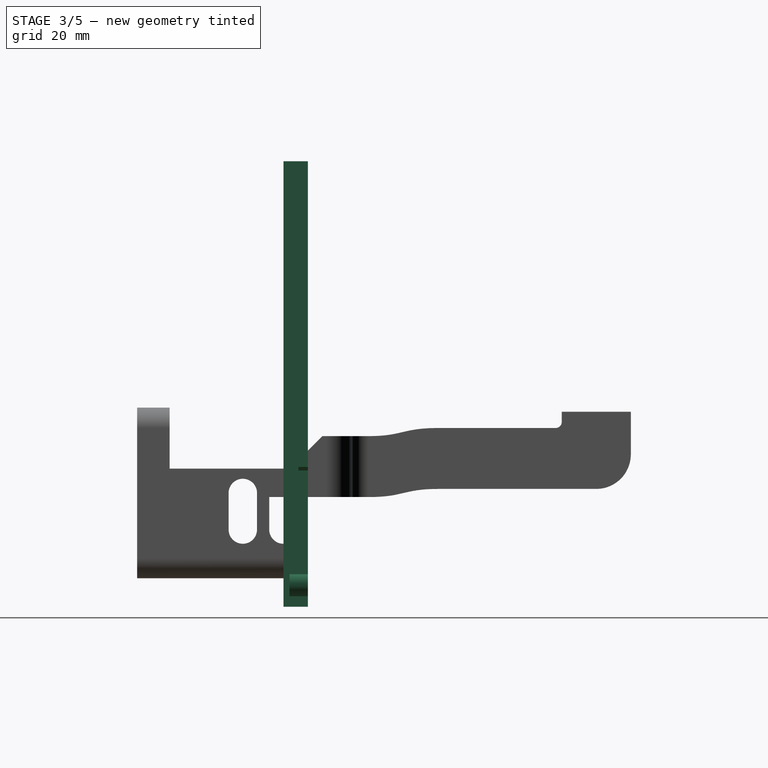
[diagram: stage 3 of 5 — right view after this stage's code; geometry added in this stage tinted green]
FEATURE [Part::Feature] Part__Feature001  label="MGN12H"
  Placement = pos=(-22.7,11,7e-15) rot=(0.57735,-0.57735,0.57735;2.0944rad)
  shape: bbox 45.4 x 11 x 27 mm, 40 faces (baked)
FEATURE [PartDesign::ShapeBinder] ShapeBinder
  Placement = pos=(-22.7,11,7e-15) rot=(0.57735,-0.57735,0.57735;2.0944rad)
  Support = -> [Part__Feature001]
  TraceSupport = false
FEATURE [Part::Feature] Part__Feature025  label="Heatsink V6"
  shape: bbox 22.3 x 22.3 x 42.7 mm, 60 faces (baked)
FEATURE [Part::Feature] Part__Feature026  label="Heatbreak V6"
  Placement = pos=(0,0,25.7142) rot=(0,0,1;0rad)
  shape: bbox 6.884 x 6.884 x 22.1 mm, 16 faces (baked)
FEATURE [Part::Feature] Part__Feature027  label="Nozzle 0.4"
  Placement = pos=(0,0,56.8343) rot=(0,0,1;0rad)
  shape: bbox 7.642 x 8.083 x 12.5 mm, 34 faces (baked)
FEATURE [Part::Feature] Part__Feature028  label="E3D V6_Heatblock v1"
  Placement = pos=(-3.22288,0,41.3403) rot=(0,0,1;0rad)
  shape: bbox 23 x 16 x 11.5 mm, 37 faces (baked)
FEATURE [App::Part] E3D_V6_v17  label="E3D V6 v17"
  Group = -> [Part__Feature025,Part__Feature026,Part__Feature027,Part__Feature028]
  Origin = -> Origin006
  Placement = pos=(0,-66,0) rot=(0,0,1;0rad)
FEATURE [Part::Feature] Part__Feature029  label="17HS4401"
  Placement = pos=(-2e-15,40,35.5) rot=(0,-0.707107,0.707107;3.14159rad)
  shape: bbox 42.3 x 64 x 45.3 mm, 44 faces (baked)
FEATURE [PartDesign::ShapeBinder] ShapeBinder001
  Placement = pos=(-2e-15,40,35.5) rot=(0,-0.707107,0.707107;3.14159rad)
  Support = -> [Part__Feature029]
  TraceSupport = false
FEATURE [PartDesign::Plane] DatumPlane
  AttachmentOffset = pos=(0,0,2) rot=(0,0,1;0rad)
  Length = 126.535
  MapMode = 5
  Placement = pos=(-24.7,11,6.6e-15) rot=(0.707107,0,-0.707107;3.14159rad)
  ResizeMode = 0
  Support = -> [ShapeBinder]
  Width = 81.8846
FEATURE [Sketcher::SketchObject] Sketch003
  FullyConstrained = true
  MapMode = 5
  Placement = pos=(-24.7,11,6.6e-15) rot=(0.707107,0,-0.707107;3.14159rad)
  Support = -> [DatumPlane]
  sketch-geometry (22):
    g0: LineSegment StartX=-6.4 StartY=16.33 StartZ=0 EndX=0.6 EndY=16.33 EndZ=0
    g1: LineSegment StartX=0.6 StartY=16.33 StartZ=0 EndX=0.6 EndY=13.33 EndZ=0
    g2: LineSegment StartX=0.6 StartY=13.33 StartZ=0 EndX=-6.4 EndY=13.33 EndZ=0
    g3: LineSegment StartX=3.7 StartY=16.33 StartZ=0 EndX=10.7 EndY=16.33 EndZ=0
    g4: LineSegment StartX=10.7 StartY=16.33 StartZ=0 EndX=10.7 EndY=13.33 EndZ=0
    g5: LineSegment StartX=10.7 StartY=13.33 StartZ=0 EndX=3.7 EndY=13.33 EndZ=0
    g6: LineSegment StartX=3.7 StartY=13.33 StartZ=0 EndX=3.7 EndY=16.33 EndZ=0
    g7: LineSegment StartX=-6.4 StartY=16.33 StartZ=0 EndX=-6.4 EndY=14.83 EndZ=0
    g8: LineSegment StartX=-6.4 StartY=14.83 StartZ=0 EndX=-6.4 EndY=13.33 EndZ=0
    g9: GeomPoint X=0 Y=17 Z=0
    g10: LineSegment StartX=-6.4 StartY=16.33 StartZ=0 EndX=-6.4 EndY=21.33 EndZ=0
    g11: LineSegment StartX=0.6 StartY=16.33 StartZ=0 EndX=0.6 EndY=21.33 EndZ=0
    g12: LineSegment StartX=3.7 StartY=16.33 StartZ=0 EndX=3.7 EndY=21.33 EndZ=0
    g13: LineSegment StartX=10.7 StartY=16.33 StartZ=0 EndX=10.7 EndY=21.33 EndZ=0
    g14: LineSegment StartX=-6.4 StartY=21.33 StartZ=0 EndX=0.6 EndY=21.33 EndZ=0
    g15: LineSegment StartX=3.7 StartY=21.33 StartZ=0 EndX=10.7 EndY=21.33 EndZ=0
    g16: LineSegment StartX=-6.4 StartY=13.33 StartZ=0 EndX=-6.4 EndY=8.33 EndZ=0
    g17: LineSegment StartX=0.6 StartY=13.33 StartZ=0 EndX=0.6 EndY=8.33 EndZ=0
    g18: LineSegment StartX=3.7 StartY=13.33 StartZ=0 EndX=3.7 EndY=8.33 EndZ=0
    g19: LineSegment StartX=10.7 StartY=13.33 StartZ=0 EndX=10.7 EndY=8.33 EndZ=0
    g20: LineSegment StartX=-6.4 StartY=8.33 StartZ=0 EndX=0.6 EndY=8.33 EndZ=0
    g21: LineSegment StartX=3.7 StartY=8.33 StartZ=0 EndX=10.7 EndY=8.33 EndZ=0
  constraints (61):
    c: Coincident(g0,g1)
    c: Coincident(g1,g2)
    c: Horizontal(g2)
    c: Vertical(g1)
    c: Coincident(g3,g4)
    c: Coincident(g4,g5)
    c: Coincident(g5,g6)
    c: Coincident(g6,g3)
    c: Horizontal(g5)
    c: Vertical(g4)
    c: Vertical(g6)
    c: DistanceX(g0,g0) = 7
    c: Equal(g0,g3)
    c: Horizontal(g1,g5)
    c: Horizontal(g0)
    c: Horizontal(g3)
    c: DistanceX(g1,g5) = 3.1
    c: DistanceX(g-1,g1) = 0.6
    c: Coincident(g7,g0)
    c: Vertical(g7)
    c: Coincident(g8,g7)
    c: Coincident(g8,g2)
    c: Vertical(g8)
    c: Equal(g8,g7)
    c: Equal(g1,g6)
    c: DistanceY(g4,g4) = 3
    c: PointOnObject(g9,g-2)
    c: DistanceY(g9) = 17
    c: DistanceY(g7,g9) = 2.17
    c: Coincident(g10,g0)
    c: Vertical(g10)
    c: Coincident(g11,g0)
    c: Vertical(g11)
    c: Coincident(g12,g3)
    c: Vertical(g12)
    c: Coincident(g13,g3)
    c: Vertical(g13)
    c: Coincident(g14,g10)
    c: Coincident(g14,g11)
    c: Coincident(g15,g12)
    c: Coincident(g15,g13)
    c: Horizontal(g15)
    c: Coincident(g16,g2)
    c: Vertical(g16)
    c: Coincident(g17,g2)
    c: Vertical(g17)
    c: Coincident(g18,g5)
    c: Vertical(g18)
    c: Coincident(g19,g5)
    c: Vertical(g19)
    c: Equal(g16,g17)
    c: Equal(g17,g18)
    c: Equal(g18,g19)
    c: Equal(g19,g10)
    c: Equal(g10,g11)
    c: Equal(g11,g12)
    c: DistanceY(g13,g13) = 5
    c: Coincident(g20,g16)
    c: Coincident(g20,g17)
    c: Coincident(g21,g18)
    c: Coincident(g21,g19)
FEATURE [Part::Feature] Part__Feature030  label="Switch"
  Placement = pos=(-35.5,4,33) rot=(0,1,0;1.5708rad)
  shape: bbox 22.36 x 9.4 x 39.7 mm, 267 faces, 2 solids (baked)
FEATURE [PartDesign::ShapeBinder] ShapeBinder002
  Placement = pos=(-35.5,4,33) rot=(0,1,0;1.5708rad)
  Support = -> [Part__Feature030]
  TraceSupport = false
FEATURE [Sketcher::SketchObject] Sketch
  ExternalGeometry = -> [ShapeBinder,ShapeBinder001,ShapeBinder002]
  FullyConstrained = true
  MapMode = 5
  Placement = pos=(0,0,0) rot=(1,0,0;1.5708rad)
  Support = -> [XZ_Plane002]
  sketch-geometry (53):
    g0: LineSegment StartX=31 StartY=56.65 StartZ=0 EndX=31 EndY=-20 EndZ=0
    g1: LineSegment StartX=-31 StartY=-20 StartZ=0 EndX=-31 EndY=10 EndZ=0
    g2: Circle CenterX=-10 CenterY=10 CenterZ=0 NormalX=0 NormalY=0 NormalZ=1 AngleXU=0 Radius=1.75
    g3: Circle CenterX=10 CenterY=10 CenterZ=0 NormalX=0 NormalY=0 NormalZ=1 AngleXU=0 Radius=1.75
    g4: Circle CenterX=-10 CenterY=-10 CenterZ=0 NormalX=0 NormalY=0 NormalZ=1 AngleXU=0 Radius=1.75
    g5: Circle CenterX=10 CenterY=-10 CenterZ=0 NormalX=0 NormalY=0 NormalZ=1 AngleXU=0 Radius=1.75
    g6: LineSegment StartX=-44 StartY=56.65 StartZ=0 EndX=-44 EndY=10 EndZ=0
    g7: LineSegment StartX=-44 StartY=10 StartZ=0 EndX=-31 EndY=10 EndZ=0
    g8: Circle CenterX=-15.5 CenterY=51 CenterZ=0 NormalX=0 NormalY=0 NormalZ=1 AngleXU=0 Radius=1.75
    g9: Circle CenterX=15.5 CenterY=51 CenterZ=0 NormalX=0 NormalY=0 NormalZ=1 AngleXU=0 Radius=1.75
    g10: Circle CenterX=-15.5 CenterY=20 CenterZ=0 NormalX=0 NormalY=0 NormalZ=1 AngleXU=0 Radius=1.75
    g11: Circle CenterX=15.5 CenterY=20 CenterZ=0 NormalX=0 NormalY=0 NormalZ=1 AngleXU=0 Radius=1.75
    g12: Circle CenterX=0 CenterY=35.5 CenterZ=0 NormalX=0 NormalY=0 NormalZ=1 AngleXU=0 Radius=11.5
    g13: Circle CenterX=-40.5725 CenterY=35.5625 CenterZ=0 NormalX=0 NormalY=0 NormalZ=1 AngleXU=0 Radius=1.75
    g14: Circle CenterX=-40.5725 CenterY=16.3875 CenterZ=0 NormalX=0 NormalY=0 NormalZ=1 AngleXU=0 Radius=1.75
    g15: LineSegment StartX=31 StartY=56.65 StartZ=0 EndX=12 EndY=56.65 EndZ=0
    g16: LineSegment StartX=12 StartY=56.65 StartZ=0 EndX=12 EndY=81.65 EndZ=0
    g17: LineSegment StartX=0 StartY=81.65 StartZ=0 EndX=12 EndY=81.65 EndZ=0
    g18: LineSegment StartX=3 StartY=78.65 StartZ=0 EndX=6 EndY=78.65 EndZ=0
    g19: LineSegment StartX=6 StartY=78.65 StartZ=0 EndX=6 EndY=73.65 EndZ=0
    g20: LineSegment StartX=6 StartY=73.65 StartZ=0 EndX=3 EndY=73.65 EndZ=0
    g21: LineSegment StartX=3 StartY=73.65 StartZ=0 EndX=3 EndY=78.65 EndZ=0
    g22: LineSegment StartX=3 StartY=66.65 StartZ=0 EndX=6 EndY=66.65 EndZ=0
    g23: LineSegment StartX=6 StartY=66.65 StartZ=0 EndX=6 EndY=61.65 EndZ=0
    g24: LineSegment StartX=6 StartY=61.65 StartZ=0 EndX=3 EndY=61.65 EndZ=0
    g25: LineSegment StartX=3 StartY=61.65 StartZ=0 EndX=3 EndY=66.65 EndZ=0
    g26: LineSegment StartX=-31 StartY=-20 StartZ=0 EndX=-15.25 EndY=-20 EndZ=0
    g27: LineSegment StartX=-15.25 StartY=-20 StartZ=0 EndX=-15.25 EndY=-28 EndZ=0
    g28: LineSegment StartX=-15.25 StartY=-28 StartZ=0 EndX=-7.25 EndY=-28 EndZ=0
    g29: LineSegment StartX=-7.25 StartY=-28 StartZ=0 EndX=-7.25 EndY=-16.75 EndZ=0
    g30: LineSegment StartX=-7.25 StartY=-16.75 StartZ=0 EndX=15.25 EndY=-16.75 EndZ=0
    g31: LineSegment StartX=15.25 StartY=-16.75 StartZ=0 EndX=15.25 EndY=-28 EndZ=0
    g32: LineSegment StartX=15.25 StartY=-28 StartZ=0 EndX=23.25 EndY=-28 EndZ=0
    g33: LineSegment StartX=23.25 StartY=-28 StartZ=0 EndX=23.25 EndY=-20 EndZ=0
    g34: LineSegment StartX=23.25 StartY=-20 StartZ=0 EndX=31 EndY=-20 EndZ=0
    g35: LineSegment StartX=-27 StartY=6.4 StartZ=0 EndX=-23 EndY=6.4 EndZ=0
    g36: LineSegment StartX=-23 StartY=6.4 StartZ=0 EndX=-23 EndY=-0.6 EndZ=0
    g37: LineSegment StartX=-23 StartY=-0.6 StartZ=0 EndX=-27 EndY=-0.6 EndZ=0
    g38: LineSegment StartX=-27 StartY=-0.6 StartZ=0 EndX=-27 EndY=6.4 EndZ=0
    g39: LineSegment StartX=-27 StartY=-3.7 StartZ=0 EndX=-23 EndY=-3.7 EndZ=0
    g40: LineSegment StartX=-23 StartY=-3.7 StartZ=0 EndX=-23 EndY=-10.7 EndZ=0
    g41: LineSegment StartX=-23 StartY=-10.7 StartZ=0 EndX=-27 EndY=-10.7 EndZ=0
    g42: LineSegment StartX=-27 StartY=-10.7 StartZ=0 EndX=-27 EndY=-3.7 EndZ=0
    g43: LineSegment StartX=23 StartY=6.4 StartZ=0 EndX=27 EndY=6.4 EndZ=0
    g44: LineSegment StartX=27 StartY=6.4 StartZ=0 EndX=27 EndY=-0.6 EndZ=0
    g45: LineSegment StartX=27 StartY=-0.6 StartZ=0 EndX=23 EndY=-0.6 EndZ=0
    g46: LineSegment StartX=23 StartY=-0.6 StartZ=0 EndX=23 EndY=6.4 EndZ=0
    g47: LineSegment StartX=23 StartY=-3.7 StartZ=0 EndX=27 EndY=-3.7 EndZ=0
    g48: LineSegment StartX=27 StartY=-3.7 StartZ=0 EndX=27 EndY=-10.7 EndZ=0
    g49: LineSegment StartX=27 StartY=-10.7 StartZ=0 EndX=23 EndY=-10.7 EndZ=0
    g50: LineSegment StartX=23 StartY=-10.7 StartZ=0 EndX=23 EndY=-3.7 EndZ=0
    g51: LineSegment StartX=-44 StartY=56.65 StartZ=0 EndX=0 EndY=56.65 EndZ=0
    g52: LineSegment StartX=0 StartY=56.65 StartZ=0 EndX=0 EndY=81.65 EndZ=0
  constraints (146):
    c: Vertical(g0)
    c: Coincident(g2,g-3)
    c: Diameter(g2) = 3.5
    c: Coincident(g3,g-4)
    c: Equal(g3,g2)
    c: Coincident(g4,g-5)
    c: Equal(g4,g2)
    c: Coincident(g5,g-6)
    c: Equal(g2,g5)
    c: Vertical(g1)
    c: DistanceX(g1,g0) = 62
    c: Symmetric(g1,g0,g-2)
    c: Vertical(g6)
    c: Coincident(g7,g6)
    c: Coincident(g7,g1)
    c: DistanceX(g6,g0) = 75
    c: Horizontal(g7)
    c: DistanceY(g1,g1) = 30
    c: Coincident(g8,g-8)
    c: Diameter(g8) = 3.5
    c: Coincident(g9,g-9)
    c: Equal(g8,g9)
    c: Coincident(g10,g-11)
    c: Equal(g10,g8)
    c: Coincident(g11,g-10)
    c: Equal(g8,g11)
    c: Coincident(g12,g-12)
    c: Diameter(g12) = 23
    c: Coincident(g13,g-13)
    c: Coincident(g14,g-14)
    c: Equal(g13,g8)
    c: Equal(g14,g8)
    c: DistanceY(g0,g-1) = 20
    c: Coincident(g15,g0)
    c: Horizontal(g15)
    c: PointOnObject(g-7,g15)
    c: Coincident(g16,g15)
    c: Vertical(g16)
    c: Coincident(g17,g16)
    c: Horizontal(g17)
    c: Coincident(g18,g19)
    c: Coincident(g19,g20)
    c: Coincident(g20,g21)
    c: Coincident(g21,g18)
    c: Horizontal(g18)
    c: Horizontal(g20)
    c: Vertical(g19)
    c: Vertical(g21)
    c: DistanceY(g21,g21) = 5
    c: DistanceX(g18,g18) = 3
    c: DistanceX(g17,g17) = 12
    c: DistanceX(g17,g18) = 3
    c: DistanceY(g18,g17) = 3
    c: Horizontal(g6,g15)
    c: Coincident(g22,g23)
    c: Coincident(g23,g24)
    c: Coincident(g24,g25)
    c: Coincident(g25,g22)
    c: Horizontal(g22)
    c: Horizontal(g24)
    c: Vertical(g23)
    c: Vertical(g25)
    c: Vertical(g22,g20)
    c: Equal(g22,g20)
    c: Equal(g21,g25)
    c: DistanceY(g22,g20) = 7
    c: Coincident(g26,g1)
    c: Horizontal(g26)
    c: Coincident(g27,g26)
    c: Vertical(g27)
    c: DistanceY(g27,g27) = 8
    c: Coincident(g28,g27)
    c: Horizontal(g28)
    c: Equal(g28,g27)
    c: DistanceX(g1,g28) = 23.75
    c: Coincident(g29,g28)
    c: Vertical(g29)
    c: Coincident(g30,g29)
    c: Horizontal(g30)
    c: Coincident(g31,g30)
    c: Vertical(g31)
    c: Horizontal(g28,g31)
    c: DistanceX(g28,g31) = 22.5
    c: Coincident(g32,g31)
    c: Horizontal(g32)
    c: Equal(g27,g32)
    c: Coincident(g33,g32)
    c: Vertical(g33)
    c: Coincident(g34,g33)
    c: Coincident(g34,g0)
    c: Horizontal(g34)
    c: DistanceY(g29,g29) = 11.25
    c: Coincident(g35,g36)
    c: Coincident(g36,g37)
    c: Coincident(g37,g38)
    c: Coincident(g38,g35)
    c: Horizontal(g35)
    c: Horizontal(g37)
    c: Vertical(g36)
    c: Vertical(g38)
    c: Coincident(g39,g40)
    c: Coincident(g40,g41)
    c: Coincident(g41,g42)
    c: Coincident(g42,g39)
    c: Horizontal(g39)
    c: Horizontal(g41)
    c: Vertical(g40)
    c: Vertical(g42)
    c: DistanceX(g35,g-1) = 23
    c: DistanceY(g-1,g35) = 6.4
    c: DistanceY(g42,g42) = 7
    c: Equal(g42,g38)
    c: DistanceY(g39,g37) = 3.1
    c: Vertical(g39,g37)
    c: DistanceX(g41,g41) = 4
    c: Equal(g37,g39)
    c: Coincident(g43,g44)
    c: Coincident(g44,g45)
    c: Coincident(g45,g46)
    c: Coincident(g46,g43)
    c: Horizontal(g43)
    c: Horizontal(g45)
    c: Vertical(g44)
    c: Vertical(g46)
    c: Coincident(g47,g48)
    c: Coincident(g48,g49)
    c: Coincident(g49,g50)
    c: Coincident(g50,g47)
    c: Horizontal(g47)
    c: Horizontal(g49)
    c: Vertical(g48)
    c: Vertical(g50)
    c: Equal(g40,g50)
    c: Equal(g39,g47)
    c: Equal(g50,g46)
    c: Equal(g47,g45)
    c: Horizontal(g47,g39)
    c: Vertical(g47,g45)
    c: Symmetric(g43,g35,g-2)
    c: DistanceY(g16,g16) = 25
    c: Coincident(g51,g6)
    c: Horizontal(g51)
    c: Coincident(g52,g51)
    c: Coincident(g52,g17)
    c: Vertical(g52)
    c: PointOnObject(g51,g-2)
FEATURE [PartDesign::Pad] Pad
  Direction = (0,-1,-2e-16)
  Length = 6
  Length2 = 10
  Placement = pos=(0,0,0) rot=(1,0,0;1.5708rad)
  Profile = -> Sketch
  ReferenceAxis = -> Sketch [N_Axis]
  Refine = true
  Type = 0
FEATURE [Sketcher::SketchObject] Sketch013
  FullyConstrained = true
  MapMode = 5
  Placement = pos=(0,0,0) rot=(1,0,0;1.5708rad)
  Support = -> [XZ_Plane007]
  sketch-geometry (18):
    g0: Circle CenterX=22.5 CenterY=9 CenterZ=0 NormalX=0 NormalY=0 NormalZ=1 AngleXU=0 Radius=1.75
    g1: ArcOfCircle CenterX=22.5 CenterY=9 CenterZ=0 NormalX=0 NormalY=0 NormalZ=1 AngleXU=0 Radius=3.5 StartAngle=4.71239 EndAngle=9.42478
    g2: Circle CenterX=-22.5 CenterY=-22 CenterZ=0 NormalX=0 NormalY=0 NormalZ=1 AngleXU=0 Radius=1.75
    g3: ArcOfCircle CenterX=-22.5 CenterY=-22 CenterZ=0 NormalX=0 NormalY=0 NormalZ=1 AngleXU=0 Radius=3.5 StartAngle=1.5708 EndAngle=6.28319
    g4: ArcOfCircle CenterX=22.5 CenterY=-22 CenterZ=0 NormalX=0 NormalY=0 NormalZ=1 AngleXU=0 Radius=3.5 StartAngle=3.14159 EndAngle=7.85398
    g5: Circle CenterX=22.5 CenterY=-22 CenterZ=0 NormalX=0 NormalY=0 NormalZ=1 AngleXU=0 Radius=1.75
    g6: ArcOfCircle CenterX=-22.5 CenterY=-15 CenterZ=0 NormalX=0 NormalY=0 NormalZ=1 AngleXU=0 Radius=3.5 StartAngle=4.71239 EndAngle=5.45042
    g7: ArcOfCircle CenterX=-15.5 CenterY=-22 CenterZ=0 NormalX=0 NormalY=0 NormalZ=1 AngleXU=0 Radius=3.5 StartAngle=2.40356 EndAngle=3.14159
    g8: LineSegment StartX=-20.1451 StartY=-17.5893 StartZ=0 EndX=-18.0893 EndY=-19.6451 EndZ=0
    g9: LineSegment StartX=-22.5 StartY=-22 StartZ=0 EndX=-20.1451 EndY=-17.5893 EndZ=0
    g10: LineSegment StartX=-22.5 StartY=-22 StartZ=0 EndX=-18.0893 EndY=-19.6451 EndZ=0
    g11: LineSegment StartX=22.5 StartY=-22 StartZ=0 EndX=18.0893 EndY=-19.6451 EndZ=0
    g12: LineSegment StartX=22.5 StartY=-22 StartZ=0 EndX=20.1451 EndY=-17.5893 EndZ=0
    g13: LineSegment StartX=18.0893 StartY=-19.6451 StartZ=0 EndX=20.1451 EndY=-17.5893 EndZ=0
    g14: ArcOfCircle CenterX=15.5 CenterY=-22 CenterZ=0 NormalX=0 NormalY=0 NormalZ=1 AngleXU=0 Radius=3.5 StartAngle=0 EndAngle=0.738029
    g15: ArcOfCircle CenterX=22.5 CenterY=-15 CenterZ=0 NormalX=0 NormalY=0 NormalZ=1 AngleXU=0 Radius=3.5 StartAngle=3.97436 EndAngle=4.71239
    g16: ArcOfCircle CenterX=22.5 CenterY=2 CenterZ=0 NormalX=0 NormalY=0 NormalZ=1 AngleXU=0 Radius=3.5 StartAngle=1.5708 EndAngle=3.14159
    g17: LineSegment StartX=19 StartY=9 StartZ=0 EndX=19 EndY=2.00002 EndZ=0
  constraints (49):
    c: Diameter(g0) = 3.5
    c: DistanceX(g-1,g0) = 22.5
    c: DistanceY(g-1,g0) = 9
    c: Coincident(g1,g0)
    c: Diameter(g1) = 7
    c: Horizontal(g0,g1)
    c: Vertical(g1,g0)
    c: Equal(g2,g0)
    c: DistanceX(g2,g-1) = 22.5
    c: DistanceY(g2,g-1) = 22
    c: Coincident(g3,g2)
    c: Equal(g3,g1)
    c: Equal(g4,g1)
    c: Coincident(g5,g4)
    c: Equal(g5,g0)
    c: Symmetric(g2,g4,g-2)
    c: Tangent(g6,g3) = 1.5708
    c: Tangent(g7,g3) = 1.5708
    c: Equal(g7,g6)
    c: Vertical(g2,g3)
    c: Horizontal(g3,g2)
    c: Coincident(g8,g6)
    c: Coincident(g8,g7)
    c: Coincident(g9,g2)
    c: Coincident(g9,g6)
    c: Coincident(g10,g2)
    c: Coincident(g10,g7)
    c: Equal(g10,g9)
    c: Equal(g3,g7)
    c: Coincident(g11,g4)
    c: Coincident(g12,g4)
    c: Equal(g11,g12)
    c: Coincident(g13,g11)
    c: Coincident(g13,g12)
    c: Horizontal(g4,g4)
    c: Vertical(g4,g4)
    c: Coincident(g14,g13)
    c: Coincident(g15,g13)
    c: Equal(g14,g15)
    c: Tangent(g14,g4) = 1.5708
    c: Tangent(g15,g4) = 1.5708
    c: Equal(g14,g4)
    c: Distance(g10) = 5
    c: Distance(g12) = 5
    c: Coincident(g17,g1)
    c: Vertical(g17)
    c: Tangent(g16,g1) = 1.5708
    c: Coincident(g16,g17)
    c: Equal(g1,g16)
FEATURE [PartDesign::Pad] Pad004
  BaseFeature = -> Pocket008
  Direction = (0,-1,-2e-16)
  Length = 4.5
  Length2 = 10
  Placement = pos=(0,0,0) rot=(1,0,0;1.5708rad)
  Profile = -> Sketch013
  ReferenceAxis = -> Sketch013 [N_Axis]
  Refine = true
  Type = 0
FEATURE [PartDesign::Body] Body004  label="Cooling fan mount"
  Group = -> [Sketch022,Pad009,Sketch036,Pocket019,Sketch039,Pad014]
  Origin = -> Origin012
  Placement = pos=(0,40,0) rot=(0,0,1;0rad)
  Tip = -> Pad014
FEATURE [PartDesign::Pocket] Pocket
  BaseFeature = -> Pad004
  Direction = (0,0,-1)
  Length = 5
  Length2 = 5
  Placement = pos=(0,0,0) rot=(1,0,0;1.5708rad)
  Profile = -> Sketch015
  ReferenceAxis = -> Sketch015 [N_Axis]
  Refine = true
  Type = 1
FEATURE [PartDesign::Chamfer] Chamfer
  Angle = 45
  Base = -> Pad [Edge159,Edge156,Edge153,Edge150]
  BaseFeature = -> Pad
  ChamferType = 2
  FlipDirection = false
  Placement = pos=(0,0,0) rot=(1,0,0;1.5708rad)
  Refine = true
  Size = 1.3
  Size2 = 1
  SupportTransform = false
  UseAllEdges = false
FEATURE [PartDesign::Pocket] Pocket001
  BaseFeature = -> Chamfer
  Direction = (1,-4e-16,2e-16)
  Length = 5
  Length2 = 5
  Placement = pos=(0,0,0) rot=(1,0,0;1.5708rad)
  Profile = -> Sketch003
  ReferenceAxis = -> Sketch003 [N_Axis]
  Refine = true
  Reversed = true
  Type = 2
FEATURE [PartDesign::Mirrored] Mirrored
  BaseFeature = -> Pocket001
  MirrorPlane = -> YZ_Plane002
  Originals = -> [Pocket001]
  Placement = pos=(0,0,0) rot=(1,0,0;1.5708rad)
  Refine = true
FEATURE [PartDesign::Body] Body001  label="Carriage plate"
  Group = -> [ShapeBinder,Sketch,Pad,Chamfer,ShapeBinder001,Sketch003,DatumPlane,Pocket001,Mirrored,ShapeBinder002,Sketch004,Pad002,Sketch005,Pocket002,Sketch011,Pocket007,Sketch014,Pocket009,DatumPlane003,Sketch017,Sketch019,Pad007,Sketch031,Pocket015,DatumPlane009,Sketch032,Pocket016,Sketch033,Pocket017,Pocket024]
  Origin = -> Origin002
  Tip = -> Pocket024
FEATURE [Sketcher::SketchObject] Sketch040
  FullyConstrained = true
  MapMode = 5
  Placement = pos=(0,0,6) rot=(0,0,1;0rad)
  Support = -> [DatumPlane001]
  sketch-geometry (6):
    g0: LineSegment StartX=-19 StartY=-20 StartZ=0 EndX=-19 EndY=-27 EndZ=0
    g1: LineSegment StartX=-19 StartY=-27 StartZ=0 EndX=-12 EndY=-23.5 EndZ=0
    g2: LineSegment StartX=-12 StartY=-23.5 StartZ=0 EndX=-19 EndY=-20 EndZ=0
    g3: LineSegment StartX=19 StartY=-20 StartZ=0 EndX=19 EndY=-27 EndZ=0
    g4: LineSegment StartX=19 StartY=-27 StartZ=0 EndX=12 EndY=-23.5 EndZ=0
    g5: LineSegment StartX=12 StartY=-23.5 StartZ=0 EndX=19 EndY=-20 EndZ=0
  constraints (17):
    c: Vertical(g0)
    c: Coincident(g1,g0)
    c: Coincident(g2,g1)
    c: Coincident(g2,g0)
    c: Vertical(g3)
    c: Coincident(g4,g3)
    c: Coincident(g5,g4)
    c: Coincident(g5,g3)
    c: Equal(g0,g3)
    c: Equal(g1,g2)
    c: Equal(g4,g5)
    c: Equal(g2,g5)
    c: DistanceX(g3) = 19
    c: Symmetric(g3,g0,g-2)
    c: DistanceY(g3,g-1) = 20
    c: DistanceX(g4,g3) = 7
    c: DistanceY(g3,g3) = 7
FEATURE [PartDesign::Pad] Pad015
  BaseFeature = -> Pocket
  Direction = (0,0,1)
  Length = 25
  Length2 = 10
  Placement = pos=(0,0,0) rot=(1,0,0;1.5708rad)
  Profile = -> Sketch040
  ReferenceAxis = -> Sketch040 [N_Axis]
  Refine = true
  Reversed = true
  Type = 0
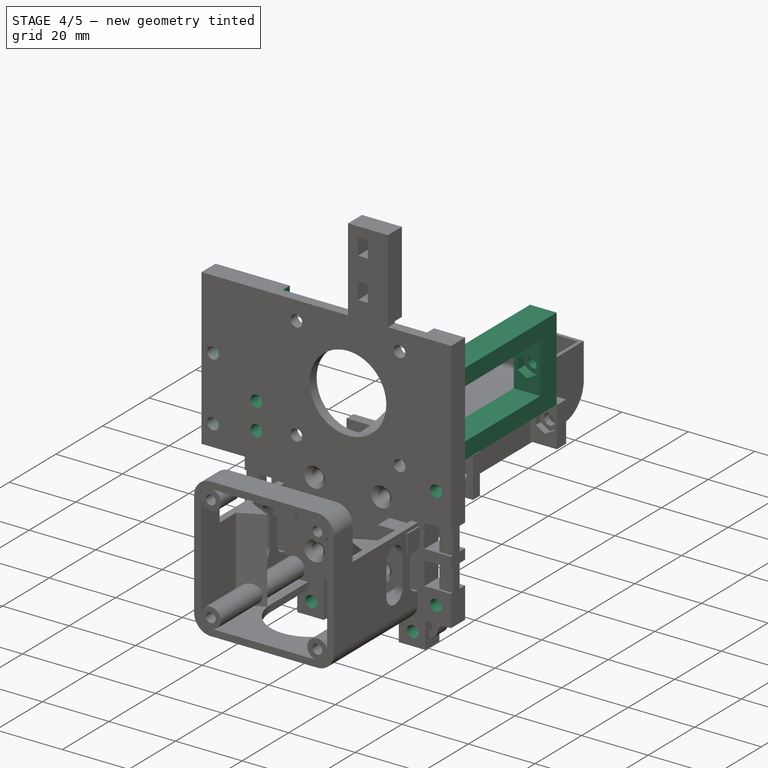
[diagram: stage 4 of 5 — iso view after this stage's code; geometry added in this stage tinted green]
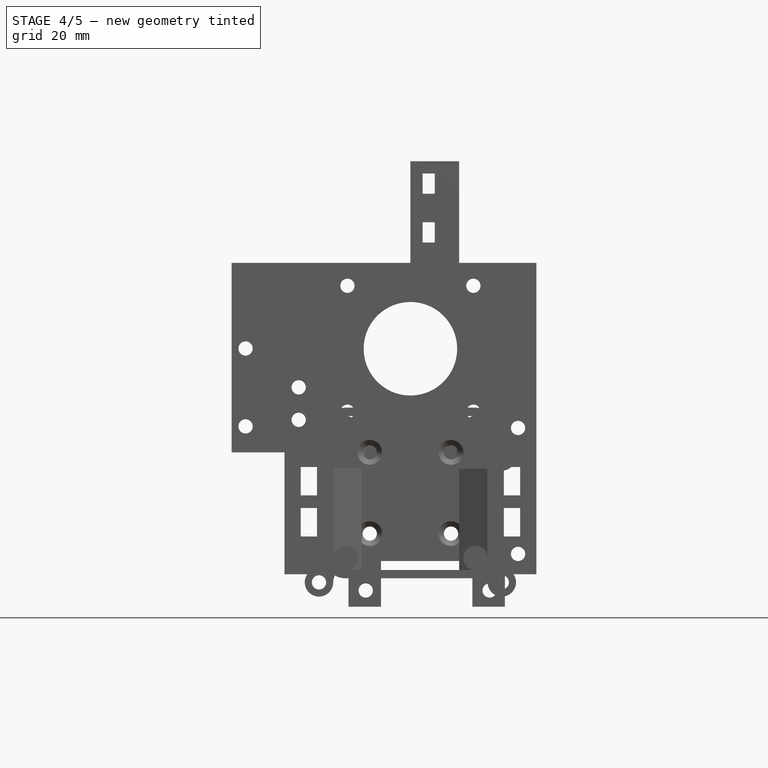
[diagram: stage 4 of 5 — front view after this stage's code; geometry added in this stage tinted green]
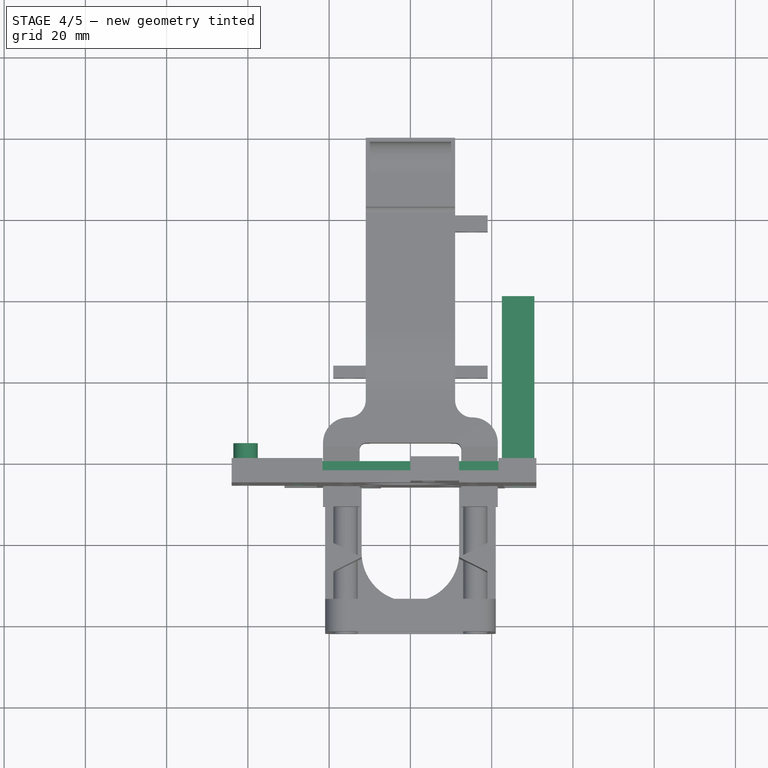
[diagram: stage 4 of 5 — top view after this stage's code; geometry added in this stage tinted green]
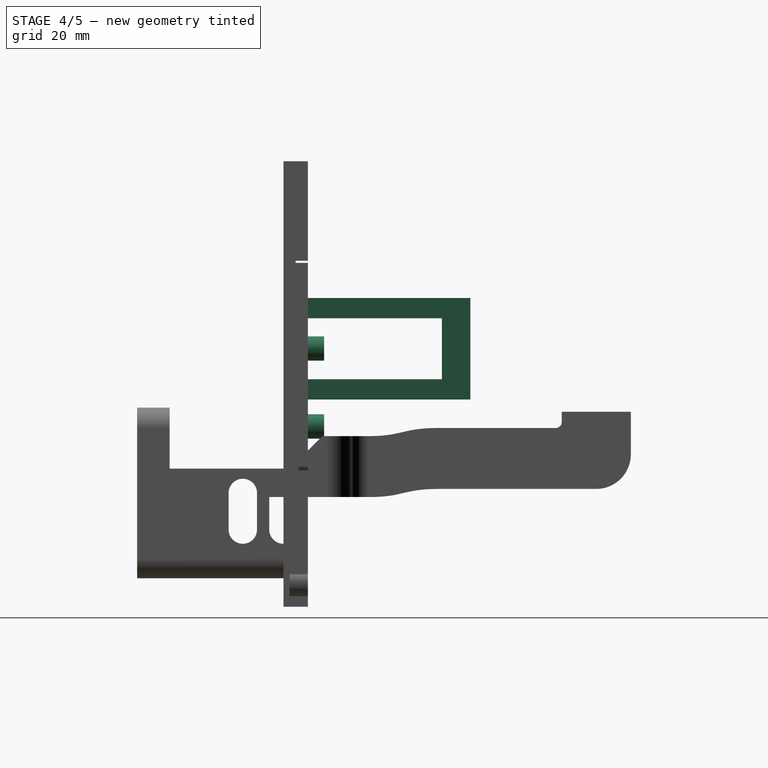
[diagram: stage 4 of 5 — right view after this stage's code; geometry added in this stage tinted green]
FEATURE [PartDesign::Pad] Pad002
  BaseFeature = -> Mirrored
  Direction = (0,-1,-2e-16)
  Length = 4
  Length2 = 10
  Placement = pos=(0,0,0) rot=(1,0,0;1.5708rad)
  Profile = -> Sketch004
  ReferenceAxis = -> Sketch004 [N_Axis]
  Refine = true
  Reversed = true
  Type = 0
FEATURE [PartDesign::Pocket] Pocket002
  BaseFeature = -> Pad002
  Direction = (0,1,2e-16)
  Length = 3
  Length2 = 5
  Placement = pos=(0,0,0) rot=(1,0,0;1.5708rad)
  Profile = -> Sketch005
  ReferenceAxis = -> Sketch005 [N_Axis]
  Refine = true
  Reversed = true
  Type = 0
FEATURE [PartDesign::Pocket] Pocket007
  BaseFeature = -> Pocket002
  Direction = (0,1,2e-16)
  Length = 5
  Length2 = 5
  Placement = pos=(0,0,0) rot=(1,0,0;1.5708rad)
  Profile = -> Sketch011
  ReferenceAxis = -> Sketch011 [N_Axis]
  Refine = true
  Reversed = true
  Type = 1
FEATURE [PartDesign::Pocket] Pocket009
  BaseFeature = -> Pocket007
  Direction = (0,1,2e-16)
  Length = 3
  Length2 = 5
  Placement = pos=(0,0,0) rot=(1,0,0;1.5708rad)
  Profile = -> Sketch014
  ReferenceAxis = -> Sketch014 [N_Axis]
  Refine = true
  Reversed = true
  Type = 0
FEATURE [PartDesign::Pad] Pad007
  BaseFeature = -> Pocket009
  Direction = (0,-1,-2e-16)
  Length = 40
  Length2 = 10
  Placement = pos=(0,0,0) rot=(1,0,0;1.5708rad)
  Profile = -> Sketch019
  ReferenceAxis = -> Sketch019 [N_Axis]
  Refine = true
  Reversed = true
  Type = 0
FEATURE [PartDesign::Pocket] Pocket015
  BaseFeature = -> Pad007
  Direction = (-1,2e-16,-3e-16)
  Length = 5
  Length2 = 5
  Placement = pos=(0,0,0) rot=(1,0,0;1.5708rad)
  Profile = -> Sketch031
  ReferenceAxis = -> Sketch031 [N_Axis]
  Refine = true
  Reversed = true
  Type = 1
FEATURE [PartDesign::Pocket] Pocket016
  BaseFeature = -> Pocket015
  Direction = (0,-1,-2e-16)
  Length = 5
  Length2 = 5
  Placement = pos=(0,0,0) rot=(1,0,0;1.5708rad)
  Profile = -> Sketch032
  ReferenceAxis = -> Sketch032 [N_Axis]
  Refine = true
  Reversed = true
  Type = 1
FEATURE [PartDesign::Pocket] Pocket017
  BaseFeature = -> Pocket016
  Direction = (0,-1,-2e-16)
  Length = 3
  Length2 = 5
  Placement = pos=(0,0,0) rot=(1,0,0;1.5708rad)
  Profile = -> Sketch033
  ReferenceAxis = -> Sketch033 [N_Axis]
  Refine = true
  Reversed = true
  Type = 0
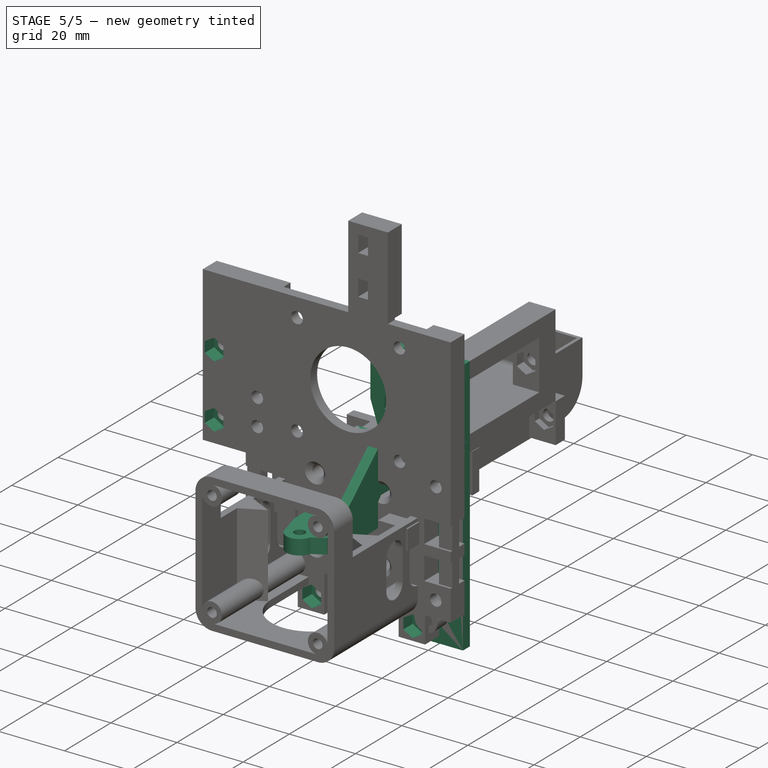
[diagram: stage 5 of 5 — iso view after this stage's code; geometry added in this stage tinted green]
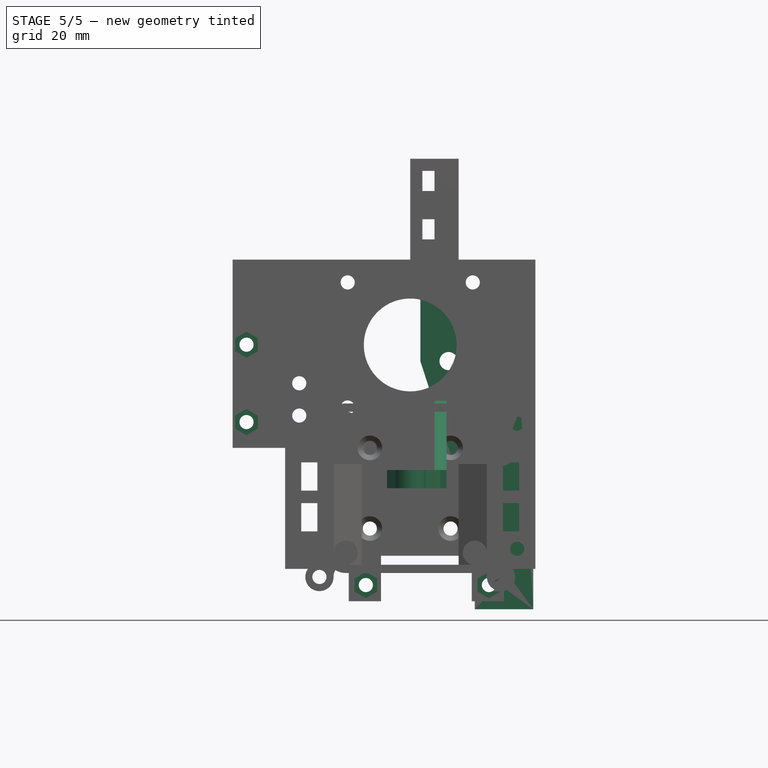
[diagram: stage 5 of 5 — front view after this stage's code; geometry added in this stage tinted green]
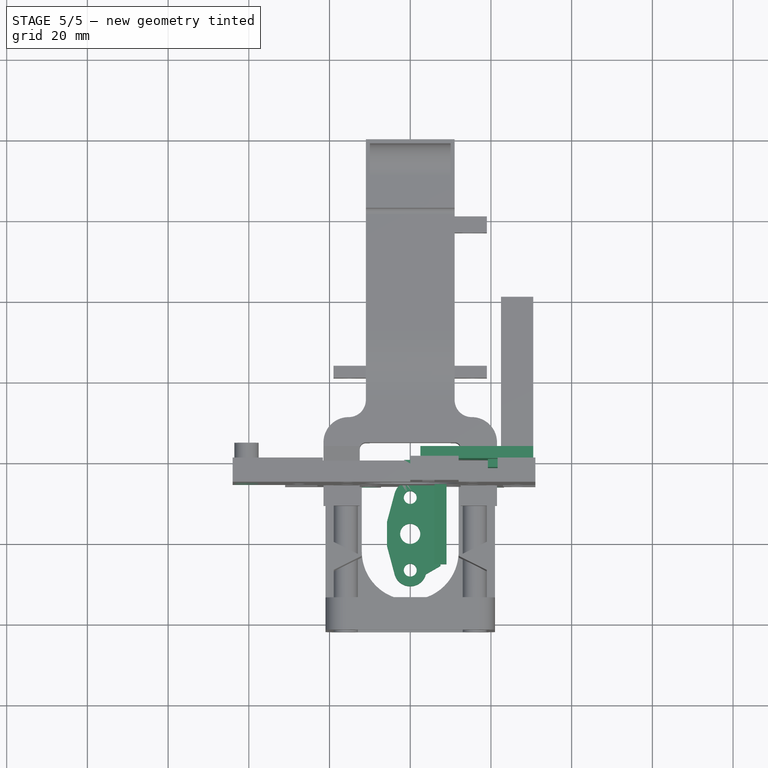
[diagram: stage 5 of 5 — top view after this stage's code; geometry added in this stage tinted green]
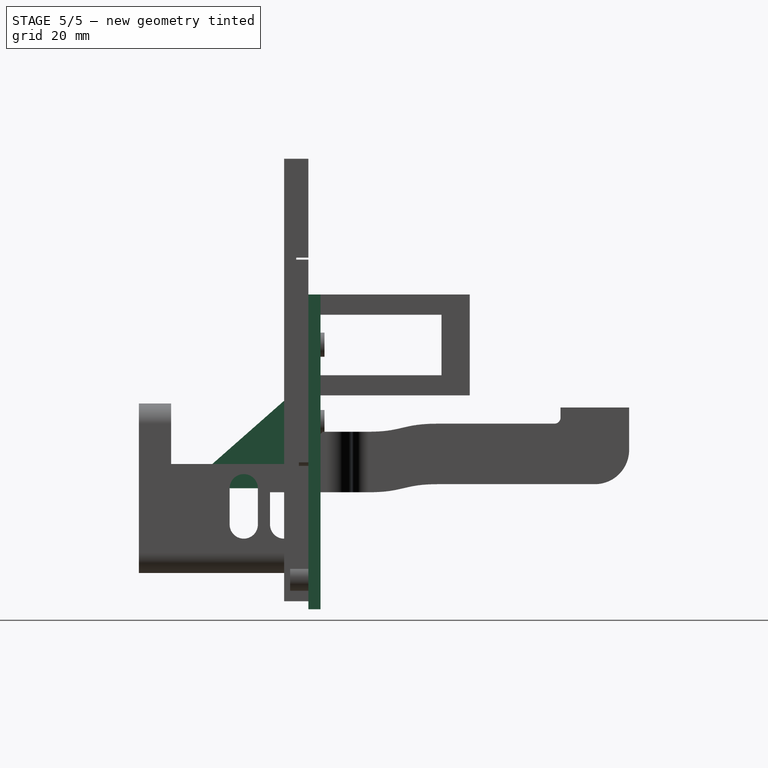
[diagram: stage 5 of 5 — right view after this stage's code; geometry added in this stage tinted green]
FEATURE [Sketcher::SketchObject] Sketch014
  FullyConstrained = true
  MapMode = 5
  Placement = pos=(0,0,0) rot=(1,0,0;1.5708rad)
  Support = -> [XZ_Plane002]
  sketch-geometry (35):
    g0: LineSegment StartX=29.3146 StartY=14.375 StartZ=0 EndX=29.3146 EndY=17.625 EndZ=0
    g1: LineSegment StartX=29.3146 StartY=17.625 StartZ=0 EndX=26.5 EndY=19.25 EndZ=0
    g2: LineSegment StartX=26.5 StartY=19.25 StartZ=0 EndX=23.6854 EndY=17.625 EndZ=0
    g3: LineSegment StartX=23.6854 StartY=17.625 StartZ=0 EndX=23.6854 EndY=14.375 EndZ=0
    g4: LineSegment StartX=23.6854 StartY=14.375 StartZ=0 EndX=26.5 EndY=12.75 EndZ=0
    g5: LineSegment StartX=26.5 StartY=12.75 StartZ=0 EndX=29.3146 EndY=14.375 EndZ=0
    g6: Circle CenterX=26.5 CenterY=16 CenterZ=0 NormalX=0 NormalY=0 NormalZ=1 AngleXU=0 Radius=3.25
    g7: LineSegment StartX=-15.25 StartY=-15 StartZ=0 EndX=-16.875 EndY=-12.1854 EndZ=0
    g8: LineSegment StartX=-16.875 StartY=-12.1854 StartZ=0 EndX=-20.125 EndY=-12.1854 EndZ=0
    g9: LineSegment StartX=-20.125 StartY=-12.1854 StartZ=0 EndX=-21.75 EndY=-15 EndZ=0
    g10: LineSegment StartX=-21.75 StartY=-15 StartZ=0 EndX=-20.125 EndY=-17.8146 EndZ=0
    g11: LineSegment StartX=-20.125 StartY=-17.8146 StartZ=0 EndX=-16.875 EndY=-17.8146 EndZ=0
    g12: LineSegment StartX=-16.875 StartY=-17.8146 StartZ=0 EndX=-15.25 EndY=-15 EndZ=0
    g13: Circle CenterX=-18.5 CenterY=-15 CenterZ=0 NormalX=0 NormalY=0 NormalZ=1 AngleXU=0 Radius=3.25
    g14: LineSegment StartX=24.875 StartY=-17.8146 StartZ=0 EndX=28.125 EndY=-17.8146 EndZ=0
    g15: LineSegment StartX=28.125 StartY=-17.8146 StartZ=0 EndX=29.75 EndY=-15 EndZ=0
    g16: LineSegment StartX=29.75 StartY=-15 StartZ=0 EndX=28.125 EndY=-12.1854 EndZ=0
    g17: LineSegment StartX=28.125 StartY=-12.1854 StartZ=0 EndX=24.875 EndY=-12.1854 EndZ=0
    g18: LineSegment StartX=24.875 StartY=-12.1854 StartZ=0 EndX=23.25 EndY=-15 EndZ=0
    g19: LineSegment StartX=23.25 StartY=-15 StartZ=0 EndX=24.875 EndY=-17.8146 EndZ=0
    g20: Circle CenterX=26.5 CenterY=-15 CenterZ=0 NormalX=0 NormalY=0 NormalZ=1 AngleXU=0 Radius=3.25
    g21: LineSegment StartX=-24.6854 StartY=24.375 StartZ=0 EndX=-24.6854 EndY=27.625 EndZ=0
    g22: LineSegment StartX=-24.6854 StartY=27.625 StartZ=0 EndX=-27.5 EndY=29.25 EndZ=0
    g23: LineSegment StartX=-27.5 StartY=29.25 StartZ=0 EndX=-30.3146 EndY=27.625 EndZ=0
    g24: LineSegment StartX=-30.3146 StartY=27.625 StartZ=0 EndX=-30.3146 EndY=24.375 EndZ=0
    g25: LineSegment StartX=-30.3146 StartY=24.375 StartZ=0 EndX=-27.5 EndY=22.75 EndZ=0
    g26: LineSegment StartX=-27.5 StartY=22.75 StartZ=0 EndX=-24.6854 EndY=24.375 EndZ=0
    g27: Circle CenterX=-27.5 CenterY=26 CenterZ=0 NormalX=0 NormalY=0 NormalZ=1 AngleXU=0 Radius=3.25
    g28: LineSegment StartX=-24.6854 StartY=16.375 StartZ=0 EndX=-24.6854 EndY=19.625 EndZ=0
    g29: LineSegment StartX=-24.6854 StartY=19.625 StartZ=0 EndX=-27.5 EndY=21.25 EndZ=0
    g30: LineSegment StartX=-27.5 StartY=21.25 StartZ=0 EndX=-30.3146 EndY=19.625 EndZ=0
    g31: LineSegment StartX=-30.3146 StartY=19.625 StartZ=0 EndX=-30.3146 EndY=16.375 EndZ=0
    g32: LineSegment StartX=-30.3146 StartY=16.375 StartZ=0 EndX=-27.5 EndY=14.75 EndZ=0
    g33: LineSegment StartX=-27.5 StartY=14.75 StartZ=0 EndX=-24.6854 EndY=16.375 EndZ=0
    g34: Circle CenterX=-27.5 CenterY=18 CenterZ=0 NormalX=0 NormalY=0 NormalZ=1 AngleXU=0 Radius=3.25
  constraints (85):
    c: Coincident(g0,g1)
    c: Coincident(g1,g2)
    c: Coincident(g2,g3)
    c: Coincident(g3,g4)
    c: Coincident(g4,g5)
    c: Coincident(g5,g0)
    c: Equal(g0, g1-g5) x5
    c: PointOnObject(g0,g6)
    c: PointOnObject(g1,g6)
    c: PointOnObject(g2,g6)
    c: PointOnObject(g3,g6)
    c: PointOnObject(g4,g6)
    c: PointOnObject(g5,g6)
    c: Diameter(g6) = 6.5
    c: Vertical(g0)
    c: DistanceX(g6) = 26.5
    c: DistanceY(g6) = 16
    c: Coincident(g7,g8)
    c: Coincident(g8,g9)
    c: Coincident(g9,g10)
    c: Coincident(g10,g11)
    c: Coincident(g11,g12)
    c: Coincident(g12,g7)
    c: Equal(g7, g8-g12) x5
    c: PointOnObject(g7,g13)
    c: PointOnObject(g8,g13)
    c: PointOnObject(g9,g13)
    c: PointOnObject(g10,g13)
    c: PointOnObject(g11,g13)
    c: PointOnObject(g12,g13)
    c: Horizontal(g8)
    c: Equal(g13,g6)
    c: DistanceX(g13,g-1) = 18.5
    c: DistanceY(g13,g-1) = 15
    c: Coincident(g14,g15)
    c: Coincident(g15,g16)
    c: Coincident(g16,g17)
    c: Coincident(g17,g18)
    c: Coincident(g18,g19)
    c: Coincident(g19,g14)
    c: Equal(g14, g15-g19) x5
    c: PointOnObject(g14,g20)
    c: PointOnObject(g15,g20)
    c: PointOnObject(g16,g20)
    c: PointOnObject(g17,g20)
    c: PointOnObject(g18,g20)
    c: PointOnObject(g19,g20)
    c: Horizontal(g20,g13)
    c: Vertical(g20,g6)
    c: Equal(g20,g6)
    c: Horizontal(g17)
    c: Coincident(g21,g22)
    c: Coincident(g22,g23)
    c: Coincident(g23,g24)
    c: Coincident(g24,g25)
    c: Coincident(g25,g26)
    c: Coincident(g26,g21)
    c: Equal(g21, g22-g26) x5
    c: PointOnObject(g21,g27)
    c: PointOnObject(g22,g27)
    c: PointOnObject(g23,g27)
    c: PointOnObject(g24,g27)
    c: PointOnObject(g25,g27)
    c: PointOnObject(g26,g27)
    c: DistanceX(g27,g-1) = 27.5
    c: DistanceY(g-1,g27) = 26
    c: Coincident(g28,g29)
    c: Coincident(g29,g30)
    c: Coincident(g30,g31)
    c: Coincident(g31,g32)
    c: Coincident(g32,g33)
    c: Coincident(g33,g28)
    c: Equal(g28, g29-g33) x5
    c: PointOnObject(g28,g34)
    c: PointOnObject(g29,g34)
    c: PointOnObject(g30,g34)
    c: PointOnObject(g31,g34)
    c: PointOnObject(g32,g34)
    c: PointOnObject(g33,g34)
    c: Vertical(g34,g27)
    c: DistanceY(g34,g27) = 8
    c: Vertical(g21)
    c: Vertical(g28)
    c: Equal(g27,g6)
    c: Equal(g34,g6)
FEATURE [Sketcher::SketchObject] Sketch015
  FullyConstrained = true
  MapMode = 5
  Support = -> [XY_Plane007]
  sketch-geometry (4):
    g0: ArcOfCircle CenterX=0 CenterY=-22 CenterZ=0 NormalX=0 NormalY=0 NormalZ=1 AngleXU=0 Radius=12 StartAngle=3.14159 EndAngle=6.28319
    g1: LineSegment StartX=-12 StartY=-22 StartZ=0 EndX=-12 EndY=0 EndZ=0
    g2: LineSegment StartX=12 StartY=-22 StartZ=0 EndX=12 EndY=0 EndZ=0
    g3: LineSegment StartX=-12 StartY=0 StartZ=0 EndX=12 EndY=0 EndZ=0
  constraints (11):
    c: PointOnObject(g0,g-2)
    c: Diameter(g0) = 24
    c: PointOnObject(g1,g-1)
    c: Vertical(g1)
    c: PointOnObject(g2,g-1)
    c: Vertical(g2)
    c: Tangent(g2,g0) = -1.5708
    c: Tangent(g1,g0) = 1.5708
    c: DistanceY(g2,g2) = 22
    c: Coincident(g3,g1)
    c: Coincident(g3,g2)
FEATURE [Part::Feature] Part__Feature031  label="93245A111"
  Placement = pos=(0,0,-2.49944) rot=(0,0,1;0rad)
  shape: bbox 4.626 x 4.007 x 5.403 mm, 32 faces (baked)
FEATURE [Part::Feature] Part__Feature032  label="COMPOUND"
  shape: bbox 26.01 x 16.53 x 53.81 mm, 107 faces, 10 solids (baked)
FEATURE [App::Part] BL_touch_v5  label="BL-touch v5"
  Group = -> [Part__Feature031,Part__Feature032]
  Origin = -> Origin009
  Placement = pos=(-30.5,-24,8) rot=(0,0,1;4.71239rad)
FEATURE [PartDesign::SubShapeBinder] Binder
  BindCopyOnChange = 0
  BindMode = 0
  ClaimChildren = false
  Context = -> Body002 [Binder.]
  Fuse = false
  MakeFace = true
  OffsetFill = false
  OffsetIntersection = false
  OffsetJoinType = 0
  OffsetOpenResult = false
  PartialLoad = false
  Refine = true
  Relative = true
  Support = -> [BL_touch_v5]
  _Version = 2
FEATURE [Sketcher::SketchObject] Sketch016
  FullyConstrained = true
  MapMode = 5
  Placement = pos=(0,0,0) rot=(1,0,0;1.5708rad)
  Support = -> [XZ_Plane008]
  sketch-geometry (14):
    g0: LineSegment StartX=-1.5 StartY=23 StartZ=0 EndX=7.5 EndY=23 EndZ=0
    g1: LineSegment StartX=7.5 StartY=23 StartZ=0 EndX=7.5 EndY=0 EndZ=0
    g2: LineSegment StartX=7.5 StartY=0 StartZ=0 EndX=-1.5 EndY=0 EndZ=0
    g3: LineSegment StartX=-1.5 StartY=0 StartZ=0 EndX=-1.5 EndY=23 EndZ=0
    g4: LineSegment StartX=-1.5 StartY=23 StartZ=0 EndX=3 EndY=18 EndZ=0
    g5: LineSegment StartX=3 StartY=18 StartZ=0 EndX=7.5 EndY=23 EndZ=0
    g6: ArcOfCircle CenterX=3 CenterY=18 CenterZ=0 NormalX=0 NormalY=0 NormalZ=1 AngleXU=0 Radius=1.75 StartAngle=-9e-16 EndAngle=3.14159
    g7: ArcOfCircle CenterX=3 CenterY=16 CenterZ=0 NormalX=0 NormalY=0 NormalZ=1 AngleXU=0 Radius=1.75 StartAngle=3.14159 EndAngle=6.28319
    g8: LineSegment StartX=1.25 StartY=18 StartZ=0 EndX=1.25 EndY=16 EndZ=0
    g9: LineSegment StartX=4.75 StartY=16 StartZ=0 EndX=4.75 EndY=18 EndZ=0
    g10: ArcOfCircle CenterX=3 CenterY=10 CenterZ=0 NormalX=0 NormalY=0 NormalZ=1 AngleXU=0 Radius=1.75 StartAngle=0 EndAngle=3.14159
    g11: ArcOfCircle CenterX=3 CenterY=8 CenterZ=0 NormalX=0 NormalY=0 NormalZ=1 AngleXU=0 Radius=1.75 StartAngle=3.14159 EndAngle=6.28319
    g12: LineSegment StartX=1.25 StartY=10 StartZ=0 EndX=1.25 EndY=8 EndZ=0
    g13: LineSegment StartX=4.75 StartY=8 StartZ=0 EndX=4.75 EndY=10 EndZ=0
  constraints (36):
    c: Coincident(g0,g1)
    c: Coincident(g1,g2)
    c: Coincident(g2,g3)
    c: Coincident(g3,g0)
    c: Horizontal(g0)
    c: Horizontal(g2)
    c: Vertical(g1)
    c: Vertical(g3)
    c: Coincident(g4,g0)
    c: Coincident(g5,g0)
    c: Equal(g4,g5)
    c: PointOnObject(g1,g-1)
    c: DistanceX(g0,g0) = 9
    c: DistanceY(g1,g1) = 23
    c: DistanceX(g-1,g1) = 7.5
    c: Tangent(g6,g8) = -1.5708
    c: Tangent(g8,g7) = -1.5708
    c: Tangent(g7,g9) = -1.5708
    c: Tangent(g9,g6) = -1.5708
    c: Equal(g6,g7)
    c: DistanceY(g4,g0) = 5
    c: Vertical(g9)
    c: Coincident(g6,g4)
    c: Coincident(g5,g6)
    c: Diameter(g6) = 3.5
    c: DistanceY(g9,g9) = 2
    c: Tangent(g10,g12) = -1.5708
    c: Tangent(g12,g11) = -1.5708
    c: Tangent(g11,g13) = -1.5708
    c: Tangent(g13,g10) = -1.5708
    c: Equal(g10,g11)
    c: Vertical(g13)
    c: Equal(g10,g6)
    c: Equal(g9,g13)
    c: DistanceY(g10,g6) = 8
    c: Vertical(g10,g6)
FEATURE [PartDesign::Pad] Pad005
  Direction = (0,-1,-2e-16)
  Length = 4.5
  Length2 = 10
  Placement = pos=(0,0,0) rot=(1,0,0;1.5708rad)
  Profile = -> Sketch016
  ReferenceAxis = -> Sketch016 [N_Axis]
  Refine = true
  Type = 0
FEATURE [PartDesign::Plane] DatumPlane003
  AttachmentOffset = pos=(0,0,6) rot=(0,0,1;0rad)
  Length = 99.4563
  MapMode = 5
  Placement = pos=(0,-6,-1.3e-15) rot=(1,0,0;1.5708rad)
  ResizeMode = 0
  Support = -> [XZ_Plane002]
  Width = 128.458
FEATURE [Sketcher::SketchObject] Sketch017
  ExternalGeometry = -> [ShapeBinder002]
  FullyConstrained = true
  MapMode = 5
  Placement = pos=(0,-6,-1.3e-15) rot=(1,0,0;1.5708rad)
  Support = -> [DatumPlane003]
  sketch-geometry (28):
    g0: LineSegment StartX=-37.7579 StartY=33.9375 StartZ=0 EndX=-37.7579 EndY=37.1875 EndZ=0
    g1: LineSegment StartX=-37.7579 StartY=37.1875 StartZ=0 EndX=-40.5725 EndY=38.8125 EndZ=0
    g2: LineSegment StartX=-40.5725 StartY=38.8125 StartZ=0 EndX=-43.3871 EndY=37.1875 EndZ=0
    g3: LineSegment StartX=-43.3871 StartY=37.1875 StartZ=0 EndX=-43.3871 EndY=33.9375 EndZ=0
    g4: LineSegment StartX=-43.3871 StartY=33.9375 StartZ=0 EndX=-40.5725 EndY=32.3125 EndZ=0
    g5: LineSegment StartX=-40.5725 StartY=32.3125 StartZ=0 EndX=-37.7579 EndY=33.9375 EndZ=0
    g6: Circle CenterX=-40.5725 CenterY=35.5625 CenterZ=0 NormalX=0 NormalY=0 NormalZ=1 AngleXU=0 Radius=3.25
    g7: LineSegment StartX=-37.7579 StartY=14.7625 StartZ=0 EndX=-37.7579 EndY=18.0125 EndZ=0
    g8: LineSegment StartX=-37.7579 StartY=18.0125 StartZ=0 EndX=-40.5725 EndY=19.6375 EndZ=0
    g9: LineSegment StartX=-40.5725 StartY=19.6375 StartZ=0 EndX=-43.3871 EndY=18.0125 EndZ=0
    g10: LineSegment StartX=-43.3871 StartY=18.0125 StartZ=0 EndX=-43.3871 EndY=14.7625 EndZ=0
    g11: LineSegment StartX=-43.3871 StartY=14.7625 StartZ=0 EndX=-40.5725 EndY=13.1375 EndZ=0
    g12: LineSegment StartX=-40.5725 StartY=13.1375 StartZ=0 EndX=-37.7579 EndY=14.7625 EndZ=0
    g13: Circle CenterX=-40.5725 CenterY=16.3875 CenterZ=0 NormalX=0 NormalY=0 NormalZ=1 AngleXU=0 Radius=3.25
    g14: LineSegment StartX=-8.18542 StartY=-25.625 StartZ=0 EndX=-8.18542 EndY=-22.375 EndZ=0
    g15: LineSegment StartX=-8.18542 StartY=-22.375 StartZ=0 EndX=-11 EndY=-20.75 EndZ=0
    g16: LineSegment StartX=-11 StartY=-20.75 StartZ=0 EndX=-13.8146 EndY=-22.375 EndZ=0
    g17: LineSegment StartX=-13.8146 StartY=-22.375 StartZ=0 EndX=-13.8146 EndY=-25.625 EndZ=0
    g18: LineSegment StartX=-13.8146 StartY=-25.625 StartZ=0 EndX=-11 EndY=-27.25 EndZ=0
    g19: LineSegment StartX=-11 StartY=-27.25 StartZ=0 EndX=-8.18542 EndY=-25.625 EndZ=0
    g20: Circle CenterX=-11 CenterY=-24 CenterZ=0 NormalX=0 NormalY=0 NormalZ=1 AngleXU=0 Radius=3.25
    g21: LineSegment StartX=22.3146 StartY=-25.625 StartZ=0 EndX=22.3146 EndY=-22.375 EndZ=0
    g22: LineSegment StartX=22.3146 StartY=-22.375 StartZ=0 EndX=19.5 EndY=-20.75 EndZ=0
    g23: LineSegment StartX=19.5 StartY=-20.75 StartZ=0 EndX=16.6854 EndY=-22.375 EndZ=0
    g24: LineSegment StartX=16.6854 StartY=-22.375 StartZ=0 EndX=16.6854 EndY=-25.625 EndZ=0
    g25: LineSegment StartX=16.6854 StartY=-25.625 StartZ=0 EndX=19.5 EndY=-27.25 EndZ=0
    g26: LineSegment StartX=19.5 StartY=-27.25 StartZ=0 EndX=22.3146 EndY=-25.625 EndZ=0
    g27: Circle CenterX=19.5 CenterY=-24 CenterZ=0 NormalX=0 NormalY=0 NormalZ=1 AngleXU=0 Radius=3.25
  constraints (66):
    c: Coincident(g0,g1)
    c: Coincident(g1,g2)
    c: Coincident(g2,g3)
    c: Coincident(g3,g4)
    c: Coincident(g4,g5)
    c: Coincident(g5,g0)
    c: Equal(g0, g1-g5) x5
    c: PointOnObject(g0,g6)
    c: PointOnObject(g1,g6)
    c: PointOnObject(g2,g6)
    c: PointOnObject(g3,g6)
    c: PointOnObject(g4,g6)
    c: PointOnObject(g5,g6)
    c: Coincident(g6,g-3)
    c: Diameter(g6) = 6.5
    c: Vertical(g0)
    c: Coincident(g7,g8)
    c: Coincident(g8,g9)
    c: Coincident(g9,g10)
    c: Coincident(g10,g11)
    c: Coincident(g11,g12)
    c: Coincident(g12,g7)
    c: Equal(g7, g8-g12) x5
    c: PointOnObject(g7,g13)
    c: PointOnObject(g8,g13)
    c: PointOnObject(g9,g13)
    c: PointOnObject(g10,g13)
    c: PointOnObject(g11,g13)
    c: PointOnObject(g12,g13)
    c: Coincident(g13,g-4)
    c: Vertical(g7)
    c: Equal(g13,g6)
    c: Coincident(g14,g15)
    c: Coincident(g15,g16)
    c: Coincident(g16,g17)
    c: Coincident(g17,g18)
    c: Coincident(g18,g19)
    c: Coincident(g19,g14)
    c: Equal(g14, g15-g19) x5
    c: PointOnObject(g14,g20)
    c: PointOnObject(g15,g20)
    c: PointOnObject(g16,g20)
    c: PointOnObject(g17,g20)
    c: PointOnObject(g18,g20)
    c: PointOnObject(g19,g20)
    c: Equal(g20,g13)
    c: Vertical(g14)
    c: DistanceX(g20,g-1) = 11
    c: DistanceY(g20,g-1) = 24
    c: Coincident(g21,g22)
    c: Coincident(g22,g23)
    c: Coincident(g23,g24)
    c: Coincident(g24,g25)
    c: Coincident(g25,g26)
    c: Coincident(g26,g21)
    c: Equal(g21, g22-g26) x5
    c: PointOnObject(g21,g27)
    c: PointOnObject(g22,g27)
    c: PointOnObject(g23,g27)
    c: PointOnObject(g24,g27)
    c: PointOnObject(g25,g27)
    c: PointOnObject(g26,g27)
    c: Vertical(g21)
    c: Equal(g27,g20)
    c: Horizontal(g20,g27)
    c: DistanceX(g-1,g27) = 19.5
FEATURE [Sketcher::SketchObject] Sketch018
  ExternalGeometry = -> [Binder]
  FullyConstrained = true
  MapMode = 5
  Support = -> [XY_Plane008]
  sketch-geometry (14):
    g0: Circle CenterX=-7.036e-13 CenterY=-27 CenterZ=0 NormalX=0 NormalY=0 NormalZ=1 AngleXU=0 Radius=1.6
    g1: Circle CenterX=-6.996e-13 CenterY=-9 CenterZ=0 NormalX=0 NormalY=0 NormalZ=1 AngleXU=0 Radius=1.6
    g2: Circle CenterX=1.42e-14 CenterY=-18 CenterZ=0 NormalX=0 NormalY=0 NormalZ=1 AngleXU=0 Radius=2.5
    g3: ArcOfCircle CenterX=-7.036e-13 CenterY=-27 CenterZ=0 NormalX=0 NormalY=0 NormalZ=1 AngleXU=0 Radius=4 StartAngle=3.40355 EndAngle=6.02123
    g4: LineSegment StartX=-3.86354 StartY=-28.0359 StartZ=0 EndX=-5.75 EndY=-21 EndZ=0
    g5: LineSegment StartX=-5.75 StartY=-21 StartZ=0 EndX=-5.75 EndY=-15 EndZ=0
    g6: LineSegment StartX=-5.75 StartY=-15 StartZ=0 EndX=-3.86354 EndY=-7.96411 EndZ=0
    g7: LineSegment StartX=3.86354 StartY=-28.0359 StartZ=0 EndX=7.5 EndY=-25.9364 EndZ=0
    g8: LineSegment StartX=7.5 StartY=-25.9364 StartZ=0 EndX=7.5 EndY=-4.5 EndZ=0
    g9: LineSegment StartX=7.5 StartY=-4.5 StartZ=0 EndX=7.5 EndY=0 EndZ=0
    g10: LineSegment StartX=-1.5 StartY=0 StartZ=0 EndX=7.5 EndY=0 EndZ=0
    g11: LineSegment StartX=-1.5 StartY=0 StartZ=0 EndX=-1.5 EndY=-4.5 EndZ=0
    g12: ArcOfCircle CenterX=-6.996e-13 CenterY=-9 CenterZ=0 NormalX=0 NormalY=0 NormalZ=1 AngleXU=0 Radius=4 StartAngle=1.95519 EndAngle=2.87963
    g13: LineSegment StartX=-1.5 StartY=-4.5 StartZ=0 EndX=-1.5 EndY=-5.2919 EndZ=0
  constraints (35):
    c: Coincident(g0,g-6)
    c: Equal(g-5,g0)
    c: Coincident(g1,g-4)
    c: Equal(g-4,g1)
    c: Coincident(g2,g-3)
    c: Equal(g-3,g2)
    c: Coincident(g3,g0)
    c: Coincident(g3,g-7)
    c: Coincident(g4,g3)
    c: Coincident(g4,g-8)
    c: Coincident(g5,g4)
    c: Coincident(g5,g-9)
    c: Coincident(g6,g5)
    c: Coincident(g6,g-9)
    c: PointOnObject(g10,g-1)
    c: DistanceX(g10,g-1) = 1.5
    c: Horizontal(g3,g3)
    c: Coincident(g7,g3)
    c: DistanceY(g8,g-1) = 4.5
    c: DistanceX(g-1,g8) = 7.5
    c: Coincident(g9,g8)
    c: PointOnObject(g9,g-1)
    c: Vertical(g9)
    c: Coincident(g10,g9)
    c: Vertical(g8)
    c: Coincident(g7,g8)
    c: Angle(g8,g7) = 2.0944
    c: Vertical(g11)
    c: Coincident(g11,g10)
    c: Equal(g11,g9)
    c: Coincident(g12,g1)
    c: Coincident(g12,g6)
    c: Coincident(g13,g11)
    c: Coincident(g13,g12)
    c: Vertical(g13)
FEATURE [PartDesign::Pad] Pad006
  BaseFeature = -> Pad005
  Direction = (0,0,1)
  Length = 4.5
  Length2 = 10
  Placement = pos=(0,0,0) rot=(1,0,0;1.5708rad)
  Profile = -> Sketch018
  ReferenceAxis = -> Sketch018 [N_Axis]
  Refine = true
  Type = 0
FEATURE [Part::Feature] Part__Feature033  label="turbine"
  Placement = pos=(0,3.2,0) rot=(0,1,0;0.138121rad)
  shape: bbox 38.92 x 10.5 x 38.96 mm, 229 faces (baked)
FEATURE [Part::Feature] Part__Feature034  label="top"
  Placement = pos=(-4e-15,15,1e-15) rot=(0,0,1;0rad)
  shape: bbox 51.3 x 8 x 51.07 mm, 45 faces (baked)
FEATURE [Part::Feature] Part__Feature035  label="bottom"
  shape: bbox 52.92 x 8.501 x 51.38 mm, 123 faces, 2 solids (baked)
FEATURE [App::Part] Radial_Cooling_Fan_5015_DC12V  label="Radial-Cooling-Fan-5015-DC12V"
  Group = -> [Part__Feature033,Part__Feature034,Part__Feature035]
  Origin = -> Origin011
  Placement = pos=(-13.5,43,11.5) rot=(0,1,0;3.14159rad)
FEATURE [Sketcher::SketchObject] Sketch022
  FullyConstrained = true
  MapMode = 5
  Placement = pos=(0,0,0) rot=(1,0,0;1.5708rad)
  Support = -> [XZ_Plane012]
  sketch-geometry (9):
    g0: LineSegment StartX=30.5 StartY=48 StartZ=0 EndX=2.5 EndY=48 EndZ=0
    g1: LineSegment StartX=30.5 StartY=48 StartZ=0 EndX=30.5 EndY=-30 EndZ=0
    g2: LineSegment StartX=16 StartY=-10 StartZ=0 EndX=16 EndY=-30 EndZ=0
    g3: LineSegment StartX=16 StartY=-30 StartZ=0 EndX=30.5 EndY=-30 EndZ=0
    g4: LineSegment StartX=2.5 StartY=48 StartZ=0 EndX=2.5 EndY=31.5 EndZ=0
    g5: Circle CenterX=19.5 CenterY=-24 CenterZ=0 NormalX=0 NormalY=0 NormalZ=1 AngleXU=0 Radius=1.75
    g6: Circle CenterX=9.5 CenterY=31.5 CenterZ=0 NormalX=0 NormalY=0 NormalZ=1 AngleXU=0 Radius=2.25
    g7: Circle CenterX=26.5 CenterY=35 CenterZ=0 NormalX=0 NormalY=0 NormalZ=1 AngleXU=0 Radius=1.75
    g8: LineSegment StartX=16 StartY=-10 StartZ=0 EndX=2.5 EndY=31.5 EndZ=0
  constraints (27):
    c: Horizontal(g0)
    c: Coincident(g1,g0)
    c: Vertical(g1)
    c: DistanceX(g0) = 30.5
    c: DistanceY(g0) = 48
    c: DistanceY(g1,g1) = 78
    c: Vertical(g2)
    c: Coincident(g3,g2)
    c: Horizontal(g3)
    c: Coincident(g4,g0)
    c: Coincident(g3,g1)
    c: DistanceY(g2,g2) = 20
    c: DistanceX(g3,g3) = 14.5
    c: Vertical(g4)
    c: DistanceX(g0,g0) = 28
    c: Diameter(g5) = 3.5
    c: DistanceX(g5) = 19.5
    c: DistanceY(g5,g-1) = 24
    c: Diameter(g6) = 4.5
    c: DistanceX(g6) = 9.5
    c: DistanceY(g6) = 31.5
    c: Diameter(g7) = 3.5
    c: DistanceX(g7) = 26.5
    c: DistanceY(g7) = 35
    c: Coincident(g8,g2)
    c: Coincident(g8,g4)
    c: Horizontal(g4,g6)
FEATURE [PartDesign::Pad] Pad009
  Direction = (0,-1,-2e-16)
  Length = 3
  Length2 = 10
  Placement = pos=(0,0,0) rot=(1,0,0;1.5708rad)
  Profile = -> Sketch022
  ReferenceAxis = -> Sketch022 [N_Axis]
  Refine = true
  Reversed = true
  Type = 0
FEATURE [PartDesign::Plane] DatumPlane007
  AttachmentOffset = pos=(0,0,1.5) rot=(0,0,1;0rad)
  Length = 64.4568
  MapMode = 5
  Placement = pos=(0,0,1.5) rot=(0,0,1;0rad)
  ResizeMode = 0
  Support = -> [XY_Plane010]
  Width = 118.957
FEATURE [Sketcher::SketchObject] Sketch029
  FullyConstrained = true
  MapMode = 5
  Placement = pos=(0,0,1.5) rot=(0,0,1;0rad)
  Support = -> [DatumPlane007]
  sketch-geometry (12):
    g0: LineSegment StartX=10 StartY=23.5 StartZ=0 EndX=19 EndY=23.5 EndZ=0
    g1: LineSegment StartX=19 StartY=23.5 StartZ=0 EndX=19 EndY=20.5 EndZ=0
    g2: LineSegment StartX=19 StartY=20.5 StartZ=0 EndX=10 EndY=20.5 EndZ=0
    g3: LineSegment StartX=10 StartY=20.5 StartZ=0 EndX=10 EndY=23.5 EndZ=0
    g4: LineSegment StartX=-19 StartY=23.5 StartZ=0 EndX=-10 EndY=23.5 EndZ=0
    g5: LineSegment StartX=-10 StartY=23.5 StartZ=0 EndX=-10 EndY=20.5 EndZ=0
    g6: LineSegment StartX=-10 StartY=20.5 StartZ=0 EndX=-19 EndY=20.5 EndZ=0
    g7: LineSegment StartX=-19 StartY=20.5 StartZ=0 EndX=-19 EndY=23.5 EndZ=0
    g8: LineSegment StartX=10 StartY=60.5 StartZ=0 EndX=19 EndY=60.5 EndZ=0
    g9: LineSegment StartX=19 StartY=60.5 StartZ=0 EndX=19 EndY=56.5 EndZ=0
    g10: LineSegment StartX=19 StartY=56.5 StartZ=0 EndX=10 EndY=56.5 EndZ=0
    g11: LineSegment StartX=10 StartY=56.5 StartZ=0 EndX=10 EndY=60.5 EndZ=0
  constraints (35):
    c: Coincident(g0,g1)
    c: Coincident(g1,g2)
    c: Coincident(g2,g3)
    c: Coincident(g3,g0)
    c: Horizontal(g0)
    c: Horizontal(g2)
    c: Vertical(g1)
    c: Vertical(g3)
    c: DistanceY(g1,g1) = 3
    c: DistanceX(g0,g0) = 9
    c: DistanceX(g-1,g2) = 10
    c: DistanceY(g-1,g2) = 20.5
    c: Coincident(g4,g5)
    c: Coincident(g5,g6)
    c: Coincident(g6,g7)
    c: Coincident(g7,g4)
    c: Horizontal(g4)
    c: Horizontal(g6)
    c: Vertical(g5)
    c: Vertical(g7)
    c: Equal(g4,g0)
    c: Symmetric(g5,g2,g-2)
    c: Horizontal(g4,g0)
    c: Coincident(g8,g9)
    c: Coincident(g9,g10)
    c: Coincident(g10,g11)
    c: Coincident(g11,g8)
    c: Horizontal(g8)
    c: Horizontal(g10)
    c: Vertical(g9)
    c: Vertical(g11)
    c: Vertical(g0,g10)
    c: Equal(g0,g10)
    c: DistanceY(g8) = 60.5
    c: DistanceY(g9,g9) = 4
FEATURE [PartDesign::Plane] DatumPlane008
  AttachmentOffset = pos=(0,0,20.5) rot=(0,0,1;0rad)
  Length = 60
  MapMode = 5
  Placement = pos=(0,20.5,4.6e-15) rot=(0,0.707107,0.707107;3.14159rad)
  ResizeMode = 0
  Support = -> [XZ_Plane010]
  Width = 60
FEATURE [Sketcher::SketchObject] Sketch030
  FullyConstrained = true
  MapMode = 5
  Placement = pos=(0,20.5,4.6e-15) rot=(0,0.707107,0.707107;3.14159rad)
  Support = -> [DatumPlane008]
  sketch-geometry (2):
    g0: Circle CenterX=-15.5 CenterY=8 CenterZ=0 NormalX=0 NormalY=0 NormalZ=1 AngleXU=0 Radius=1.75
    g1: Circle CenterX=15 CenterY=8 CenterZ=0 NormalX=0 NormalY=0 NormalZ=1 AngleXU=0 Radius=1.75
  constraints (6):
    c: Diameter(g1) = 3.5
    c: Equal(g1,g0)
    c: DistanceX(g1) = 15
    c: DistanceY(g1) = 8
    c: Horizontal(g0,g1)
    c: DistanceX(g0,g-1) = 15.5
FEATURE [Sketcher::SketchObject] Sketch031
  FullyConstrained = true
  MapMode = 5
  Placement = pos=(0,0,0) rot=(0.57735,0.57735,0.57735;2.0944rad)
  Support = -> [YZ_Plane002]
  sketch-geometry (4):
    g0: LineSegment StartX=0 StartY=43 StartZ=0 EndX=33 EndY=43 EndZ=0
    g1: LineSegment StartX=33 StartY=43 StartZ=0 EndX=33 EndY=28 EndZ=0
    g2: LineSegment StartX=33 StartY=28 StartZ=0 EndX=0 EndY=28 EndZ=0
    g3: LineSegment StartX=0 StartY=28 StartZ=0 EndX=0 EndY=43 EndZ=0
  constraints (12):
    c: Coincident(g0,g1)
    c: Coincident(g1,g2)
    c: Coincident(g2,g3)
    c: Coincident(g3,g0)
    c: Horizontal(g0)
    c: Horizontal(g2)
    c: Vertical(g1)
    c: Vertical(g3)
    c: PointOnObject(g0,g-2)
    c: DistanceY(g-1,g2) = 28
    c: DistanceY(g1,g1) = 15
    c: DistanceX(g0,g0) = 33
FEATURE [PartDesign::Plane] DatumPlane009
  AttachmentOffset = pos=(0,0,33) rot=(0,0,1;0rad)
  Length = 99.4563
  MapMode = 5
  Placement = pos=(0,33,7.3e-15) rot=(0,0.707107,0.707107;3.14159rad)
  ResizeMode = 0
  Support = -> [XZ_Plane002]
  Width = 128.458
FEATURE [Sketcher::SketchObject] Sketch032
  FullyConstrained = true
  MapMode = 5
  Placement = pos=(0,33,7.3e-15) rot=(0,0.707107,0.707107;3.14159rad)
  Support = -> [DatumPlane009]
  sketch-geometry (1):
    g0: Circle CenterX=-26.5 CenterY=35 CenterZ=0 NormalX=0 NormalY=0 NormalZ=1 AngleXU=0 Radius=1.75
  constraints (3):
    c: Diameter(g0) = 3.5
    c: DistanceY(g0) = 35
    c: DistanceX(g0,g-1) = 26.5
FEATURE [Sketcher::SketchObject] Sketch033
  FullyConstrained = true
  MapMode = 5
  Placement = pos=(0,33,7.3e-15) rot=(0,0.707107,0.707107;3.14159rad)
  Support = -> [DatumPlane009]
  sketch-geometry (7):
    g0: LineSegment StartX=-23.6854 StartY=33.375 StartZ=0 EndX=-23.6854 EndY=36.625 EndZ=0
    g1: LineSegment StartX=-23.6854 StartY=36.625 StartZ=0 EndX=-26.5 EndY=38.25 EndZ=0
    g2: LineSegment StartX=-26.5 StartY=38.25 StartZ=0 EndX=-29.3146 EndY=36.625 EndZ=0
    g3: LineSegment StartX=-29.3146 StartY=36.625 StartZ=0 EndX=-29.3146 EndY=33.375 EndZ=0
    g4: LineSegment StartX=-29.3146 StartY=33.375 StartZ=0 EndX=-26.5 EndY=31.75 EndZ=0
    g5: LineSegment StartX=-26.5 StartY=31.75 StartZ=0 EndX=-23.6854 EndY=33.375 EndZ=0
    g6: Circle CenterX=-26.5 CenterY=35 CenterZ=0 NormalX=0 NormalY=0 NormalZ=1 AngleXU=0 Radius=3.25
  constraints (17):
    c: Coincident(g0,g1)
    c: Coincident(g1,g2)
    c: Coincident(g2,g3)
    c: Coincident(g3,g4)
    c: Coincident(g4,g5)
    c: Coincident(g5,g0)
    c: Equal(g0, g1-g5) x5
    c: PointOnObject(g0,g6)
    c: PointOnObject(g1,g6)
    c: PointOnObject(g2,g6)
    c: PointOnObject(g3,g6)
    c: PointOnObject(g4,g6)
    c: PointOnObject(g5,g6)
    c: Vertical(g0)
    c: Diameter(g6) = 6.5
    c: DistanceX(g6,g-1) = 26.5
    c: DistanceY(g6) = 35
FEATURE [PartDesign::Plane] DatumPlane010
  AttachmentOffset = pos=(0,0,7.5) rot=(0,0,1;0rad)
  Length = 68.0352
  MapMode = 5
  Placement = pos=(7.5,-1.7e-15,1.7e-15) rot=(0.57735,0.57735,0.57735;2.0944rad)
  ResizeMode = 0
  Support = -> [YZ_Plane008]
  Width = 77.0634
FEATURE [Sketcher::SketchObject] Sketch034
  FullyConstrained = true
  MapMode = 5
  Placement = pos=(7.5,-1.7e-15,1.7e-15) rot=(0.57735,0.57735,0.57735;2.0944rad)
  Support = -> [DatumPlane010]
  sketch-geometry (5):
    g0: LineSegment StartX=-4.5 StartY=23 StartZ=0 EndX=-25.5 EndY=4.5 EndZ=0
    g1: LineSegment StartX=-25.5 StartY=4.5 StartZ=0 EndX=-25.5 EndY=0 EndZ=0
    g2: LineSegment StartX=-25.5 StartY=0 StartZ=0 EndX=0 EndY=0 EndZ=0
    g3: LineSegment StartX=0 StartY=0 StartZ=0 EndX=0 EndY=23 EndZ=0
    g4: LineSegment StartX=0 StartY=23 StartZ=0 EndX=-4.5 EndY=23 EndZ=0
  constraints (14):
    c: Coincident(g1,g0)
    c: PointOnObject(g1,g-1)
    c: Vertical(g1)
    c: Coincident(g2,g1)
    c: Coincident(g2,g-1)
    c: Coincident(g3,g2)
    c: PointOnObject(g3,g-2)
    c: Coincident(g4,g3)
    c: Coincident(g4,g0)
    c: Horizontal(g4)
    c: DistanceY(g3,g3) = 23
    c: DistanceX(g2,g2) = 25.5
    c: DistanceX(g4,g4) = 4.5
    c: Equal(g1,g4)
FEATURE [PartDesign::Pad] Pad011
  BaseFeature = -> Pad006
  Direction = (1,-1e-16,1e-16)
  Length = 3
  Length2 = 10
  Midplane = true
  Placement = pos=(0,0,0) rot=(1,0,0;1.5708rad)
  Profile = -> Sketch034
  ReferenceAxis = -> Sketch034 [N_Axis]
  Refine = true
  Type = 0
FEATURE [PartDesign::Body] Body002  label="BL-Touch mount"
  Group = -> [Binder,Sketch016,Pad005,Sketch018,Pad006,DatumPlane010,Sketch034,Pad011]
  Origin = -> Origin008
  Placement = pos=(-30.5,-6,8) rot=(0,0,1;0rad)
  Tip = -> Pad011
FEATURE [PartDesign::Plane] DatumPlane011
  AttachmentOffset = pos=(0,0,56.5) rot=(0,0,1;0rad)
  Length = 60
  MapMode = 5
  Placement = pos=(0,56.5,1.25e-14) rot=(0,0.707107,0.707107;3.14159rad)
  ResizeMode = 0
  Support = -> [XZ_Plane010]
  Width = 60
FEATURE [Sketcher::SketchObject] Sketch035
  FullyConstrained = true
  MapMode = 5
  Placement = pos=(0,56.5,1.25e-14) rot=(0,0.707107,0.707107;3.14159rad)
  Support = -> [DatumPlane011]
  sketch-geometry (7):
    g0: LineSegment StartX=-12.6854 StartY=6.375 StartZ=0 EndX=-12.6854 EndY=9.625 EndZ=0
    g1: LineSegment StartX=-12.6854 StartY=9.625 StartZ=0 EndX=-15.5 EndY=11.25 EndZ=0
    g2: LineSegment StartX=-15.5 StartY=11.25 StartZ=0 EndX=-18.3146 EndY=9.625 EndZ=0
    g3: LineSegment StartX=-18.3146 StartY=9.625 StartZ=0 EndX=-18.3146 EndY=6.375 EndZ=0
    g4: LineSegment StartX=-18.3146 StartY=6.375 StartZ=0 EndX=-15.5 EndY=4.75 EndZ=0
    g5: LineSegment StartX=-15.5 StartY=4.75 StartZ=0 EndX=-12.6854 EndY=6.375 EndZ=0
    g6: Circle CenterX=-15.5 CenterY=8 CenterZ=0 NormalX=0 NormalY=0 NormalZ=1 AngleXU=0 Radius=3.25
  constraints (17):
    c: Coincident(g0,g1)
    c: Coincident(g1,g2)
    c: Coincident(g2,g3)
    c: Coincident(g3,g4)
    c: Coincident(g4,g5)
    c: Coincident(g5,g0)
    c: Equal(g0, g1-g5) x5
    c: PointOnObject(g0,g6)
    c: PointOnObject(g1,g6)
    c: PointOnObject(g2,g6)
    c: PointOnObject(g3,g6)
    c: PointOnObject(g4,g6)
    c: PointOnObject(g5,g6)
    c: Diameter(g6) = 6.5
    c: DistanceX(g6,g-1) = 15.5
    c: DistanceY(g6) = 8
    c: Vertical(g0)
FEATURE [Sketcher::SketchObject] Sketch036
  FullyConstrained = true
  MapMode = 5
  Placement = pos=(0,0,0) rot=(1,0,0;1.5708rad)
  Support = -> [XZ_Plane012]
  sketch-geometry (7):
    g0: LineSegment StartX=12.3146 StartY=29.875 StartZ=0 EndX=12.3146 EndY=33.125 EndZ=0
    g1: LineSegment StartX=12.3146 StartY=33.125 StartZ=0 EndX=9.5 EndY=34.75 EndZ=0
    g2: LineSegment StartX=9.5 StartY=34.75 StartZ=0 EndX=6.68542 EndY=33.125 EndZ=0
    g3: LineSegment StartX=6.68542 StartY=33.125 StartZ=0 EndX=6.68542 EndY=29.875 EndZ=0
    g4: LineSegment StartX=6.68542 StartY=29.875 StartZ=0 EndX=9.5 EndY=28.25 EndZ=0
    g5: LineSegment StartX=9.5 StartY=28.25 StartZ=0 EndX=12.3146 EndY=29.875 EndZ=0
    g6: Circle CenterX=9.5 CenterY=31.5 CenterZ=0 NormalX=0 NormalY=0 NormalZ=1 AngleXU=0 Radius=3.25
  constraints (17):
    c: Coincident(g0,g1)
    c: Coincident(g1,g2)
    c: Coincident(g2,g3)
    c: Coincident(g3,g4)
    c: Coincident(g4,g5)
    c: Coincident(g5,g0)
    c: Equal(g0, g1-g5) x5
    c: PointOnObject(g0,g6)
    c: PointOnObject(g1,g6)
    c: PointOnObject(g2,g6)
    c: PointOnObject(g3,g6)
    c: PointOnObject(g4,g6)
    c: PointOnObject(g5,g6)
    c: DistanceY(g6) = 31.5
    c: DistanceX(g6) = 9.5
    c: Vertical(g0)
    c: Diameter(g6) = 6.5
FEATURE [PartDesign::Pocket] Pocket019
  BaseFeature = -> Pad009
  Direction = (0,1,2e-16)
  Length = 1.5
  Length2 = 5
  Placement = pos=(0,0,0) rot=(1,0,0;1.5708rad)
  Profile = -> Sketch036
  ReferenceAxis = -> Sketch036 [N_Axis]
  Refine = true
  Type = 0
FEATURE [Sketcher::SketchObject] Sketch039
  FullyConstrained = true
  MapMode = 5
  Placement = pos=(0,0,0) rot=(1,0,0;1.5708rad)
  Support = -> [XZ_Plane012]
  sketch-geometry (6):
    g0: LineSegment StartX=22.25 StartY=36.75 StartZ=0 EndX=22.25 EndY=22.75 EndZ=0
    g1: LineSegment StartX=22.25 StartY=22.75 StartZ=0 EndX=27.25 EndY=22.75 EndZ=0
    g2: LineSegment StartX=22.25 StartY=36.75 StartZ=0 EndX=19.25 EndY=36.75 EndZ=0
    g3: LineSegment StartX=19.25 StartY=36.75 StartZ=0 EndX=19.25 EndY=19.75 EndZ=0
    g4: LineSegment StartX=19.25 StartY=19.75 StartZ=0 EndX=27.25 EndY=19.75 EndZ=0
    g5: LineSegment StartX=27.25 StartY=19.75 StartZ=0 EndX=27.25 EndY=22.75 EndZ=0
  constraints (18):
    c: Vertical(g0)
    c: Coincident(g1,g0)
    c: Horizontal(g1)
    c: DistanceX(g1,g1) = 5
    c: DistanceY(g0,g0) = 14
    c: DistanceX(g0) = 22.25
    c: DistanceY(g0) = 22.75
    c: Coincident(g2,g0)
    c: Horizontal(g2)
    c: Coincident(g3,g2)
    c: Vertical(g3)
    c: Coincident(g4,g3)
    c: Horizontal(g4)
    c: Coincident(g5,g4)
    c: Coincident(g5,g1)
    c: Vertical(g5)
    c: DistanceX(g2,g2) = 3
    c: Equal(g2,g5)
FEATURE [PartDesign::Pad] Pad014
  BaseFeature = -> Pocket019
  Direction = (0,-1,-2e-16)
  Length = 2
  Length2 = 10
  Placement = pos=(0,0,0) rot=(1,0,0;1.5708rad)
  Profile = -> Sketch039
  ReferenceAxis = -> Sketch039 [N_Axis]
  Refine = true
  Type = 0
FEATURE [PartDesign::Pocket] Pocket024
  BaseFeature = -> Pocket017
  Direction = (0,1,2e-16)
  Length = 4
  Length2 = 5
  Placement = pos=(0,0,0) rot=(1,0,0;1.5708rad)
  Profile = -> Sketch017
  ReferenceAxis = -> Sketch017 [N_Axis]
  Refine = true
  Type = 0
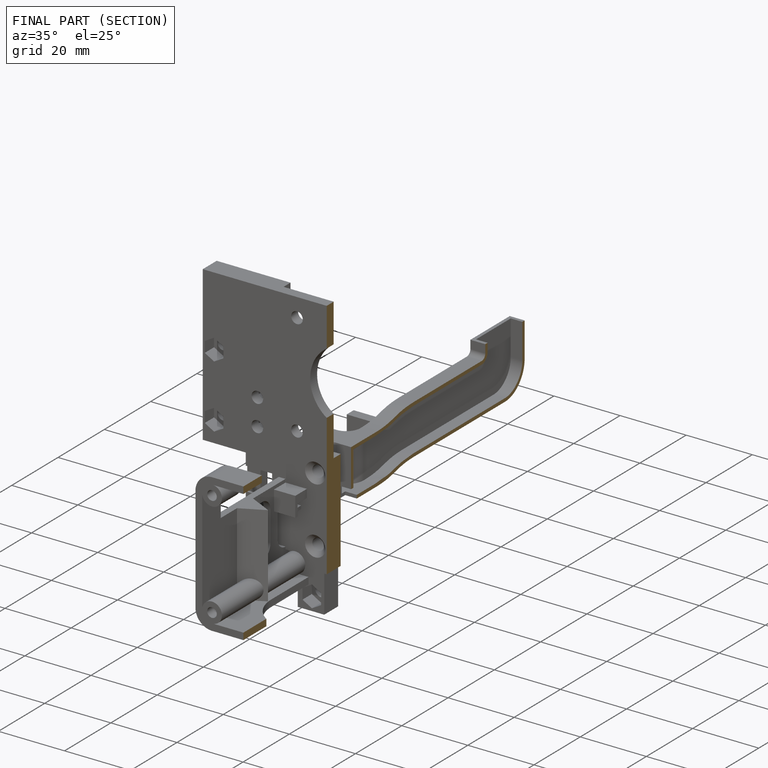
[diagram: finished part — half-section view (interior)]
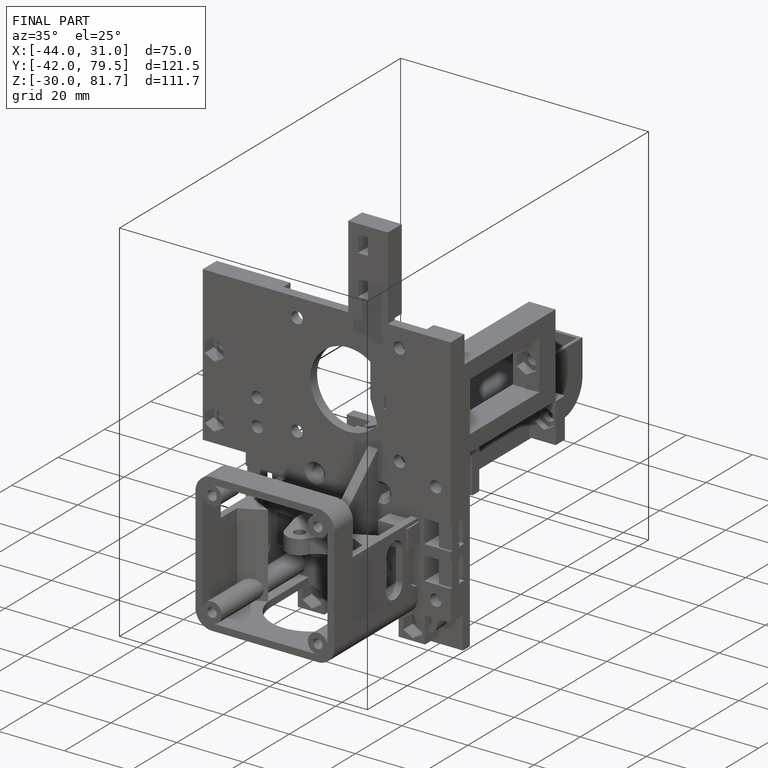
[diagram: finished part — iso view with bounding-box wireframe]
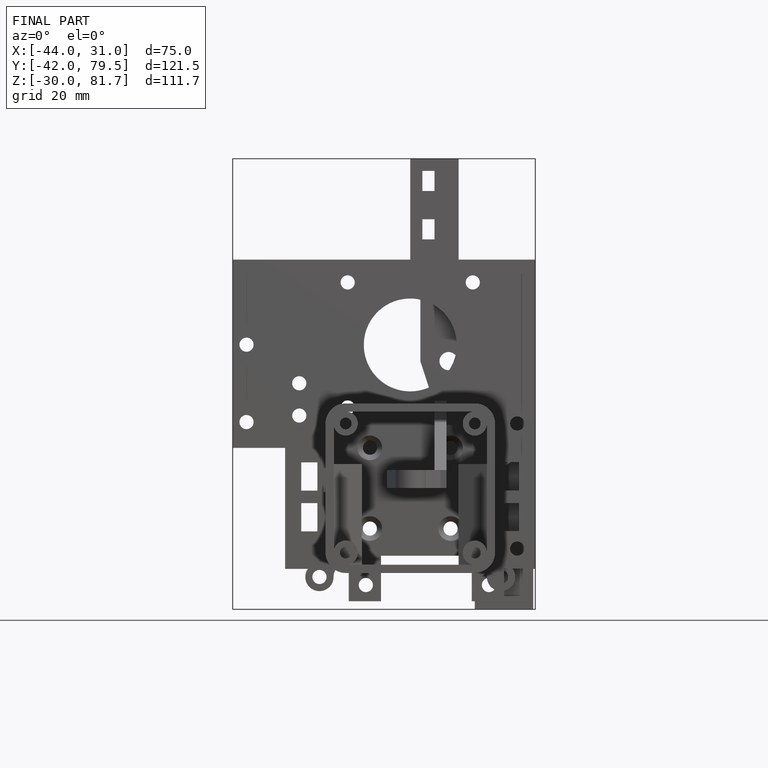
[diagram: finished part — front view with bounding-box wireframe]
